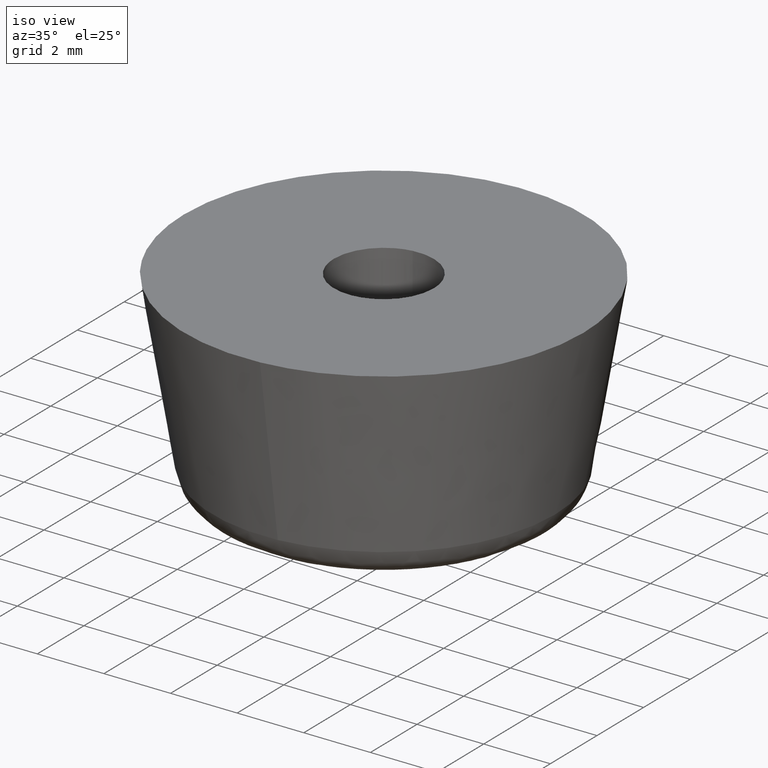
[diagram: clean part render]
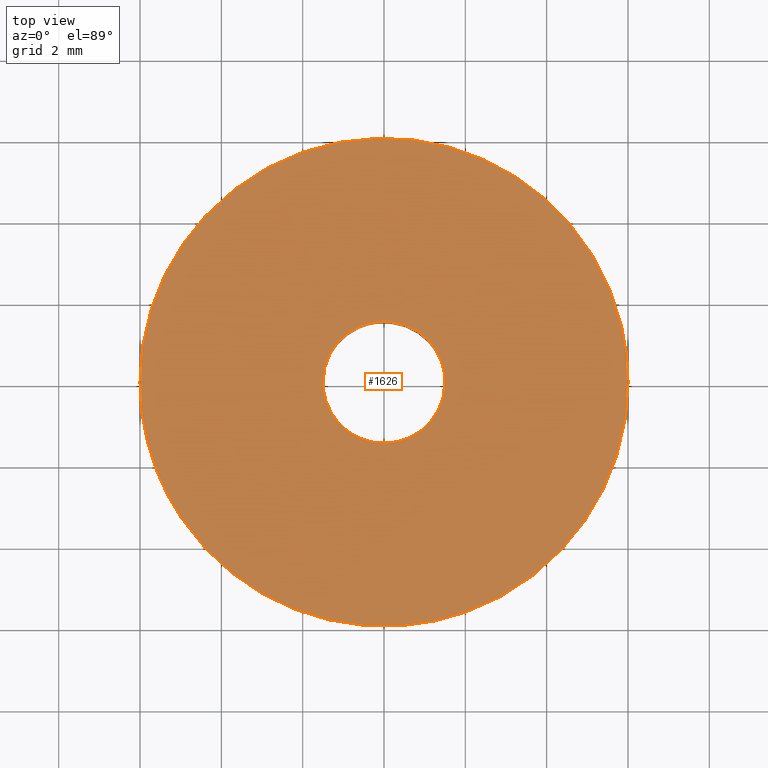
[diagram: tour spotlight — one face highlighted and labeled with its STEP entity id]
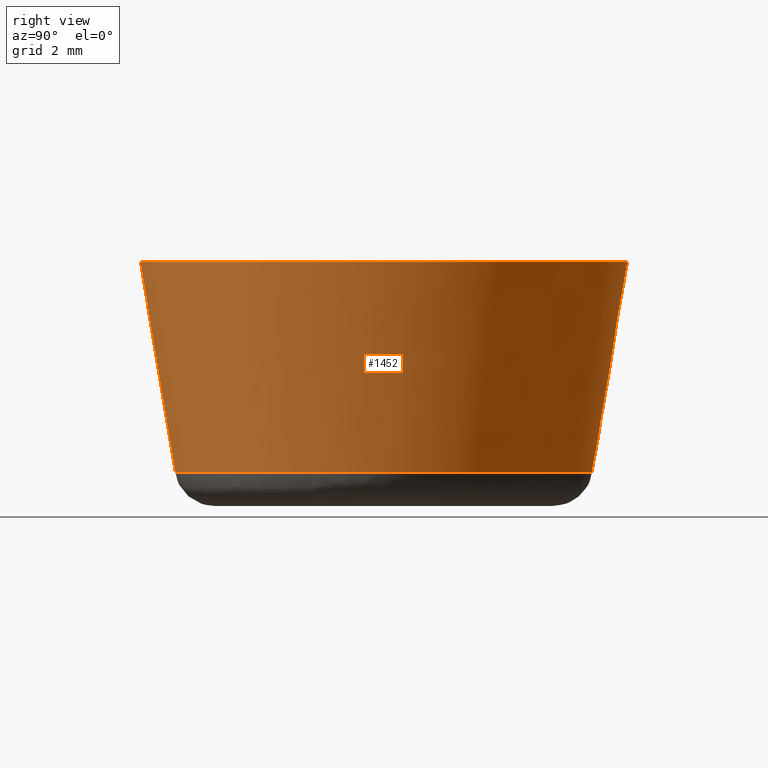
[diagram: tour spotlight — one face highlighted and labeled with its STEP entity id]
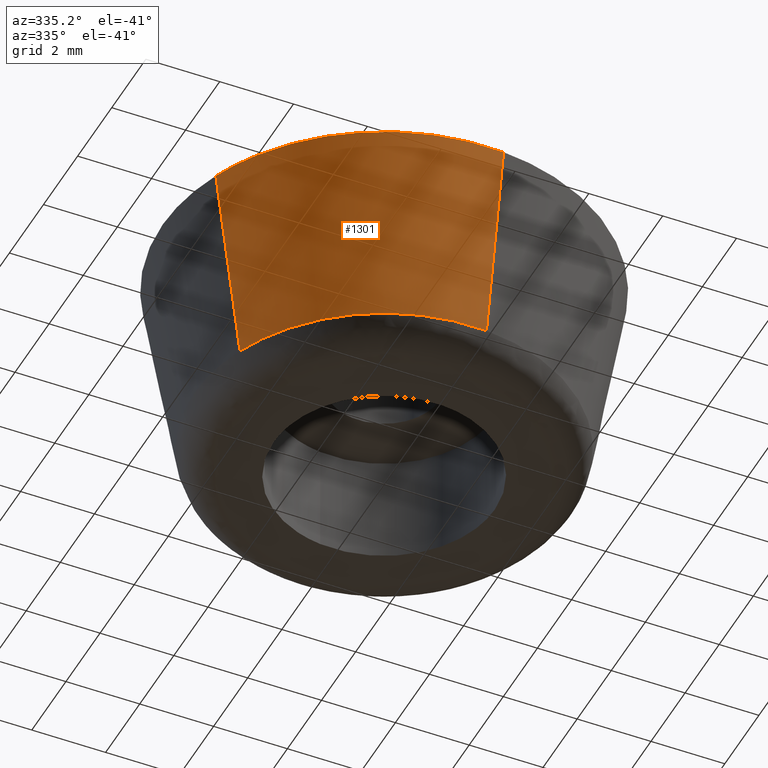
[diagram: tour spotlight — one face highlighted and labeled with its STEP entity id]
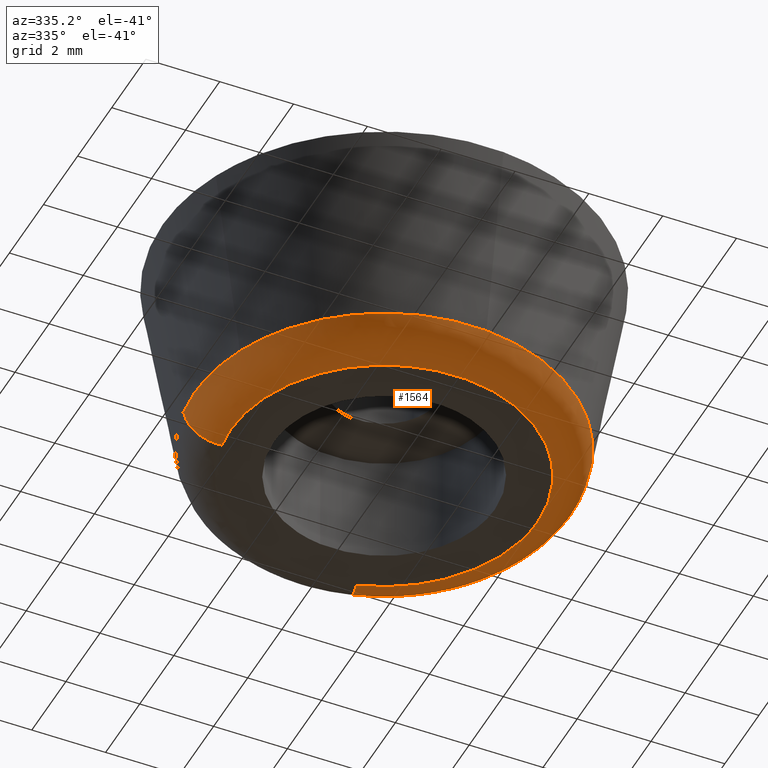
[diagram: tour spotlight — one face highlighted and labeled with its STEP entity id]
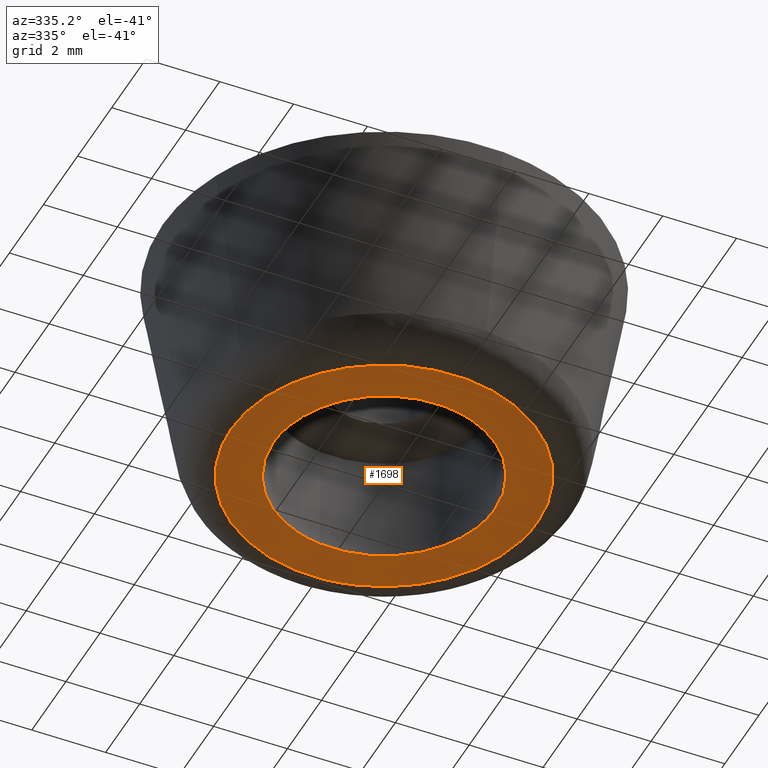
[diagram: tour spotlight — one face highlighted and labeled with its STEP entity id]
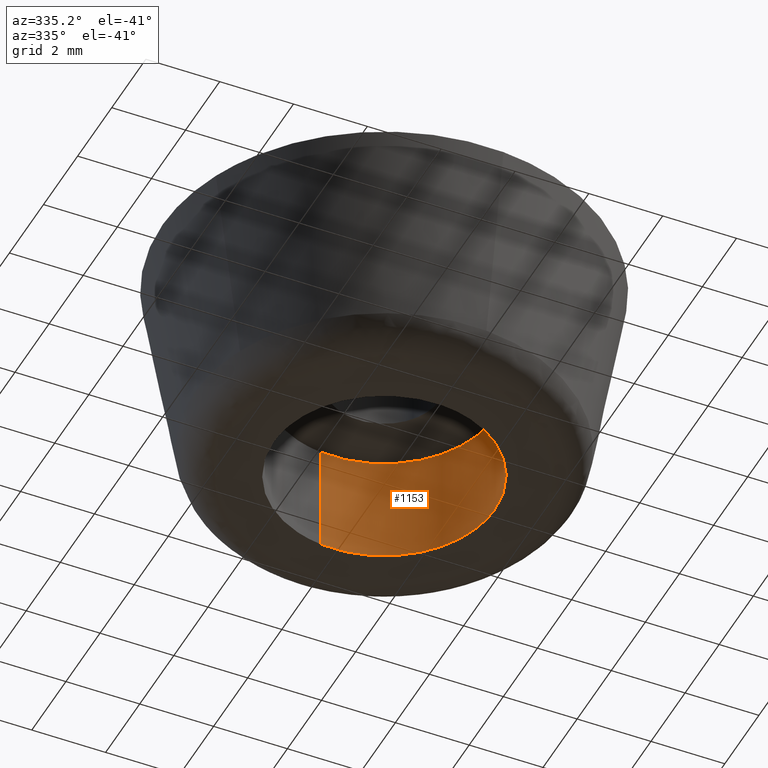
[diagram: tour spotlight — one face highlighted and labeled with its STEP entity id]
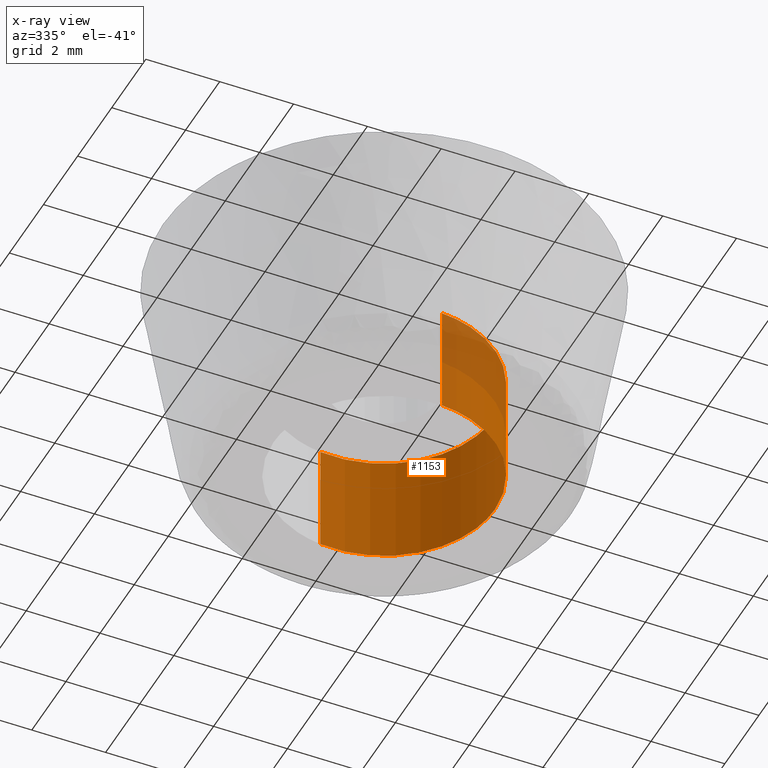
[diagram: x-ray of the same camera — body ghosted, this tour face saturated]
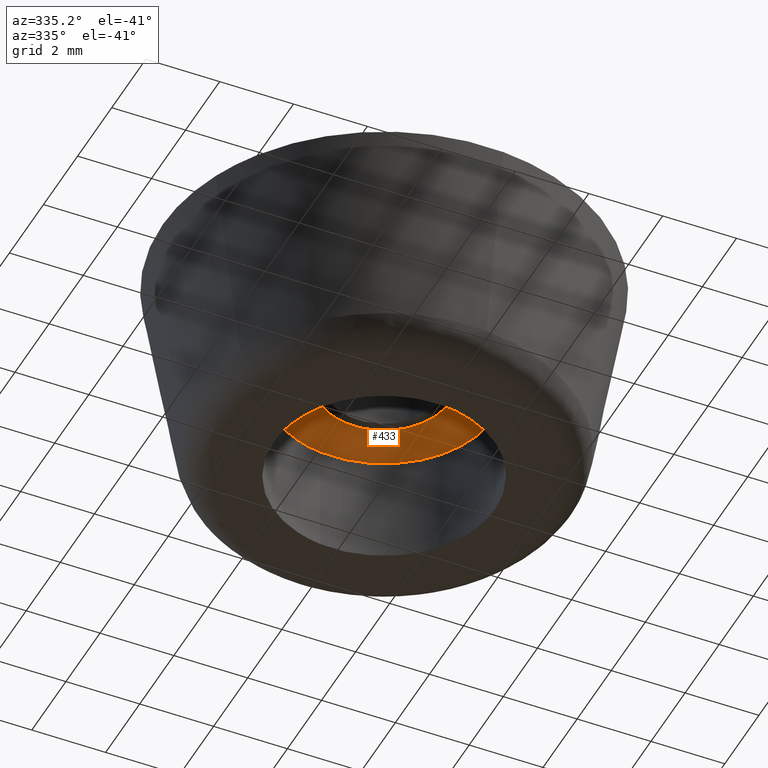
[diagram: tour spotlight — one face highlighted and labeled with its STEP entity id]
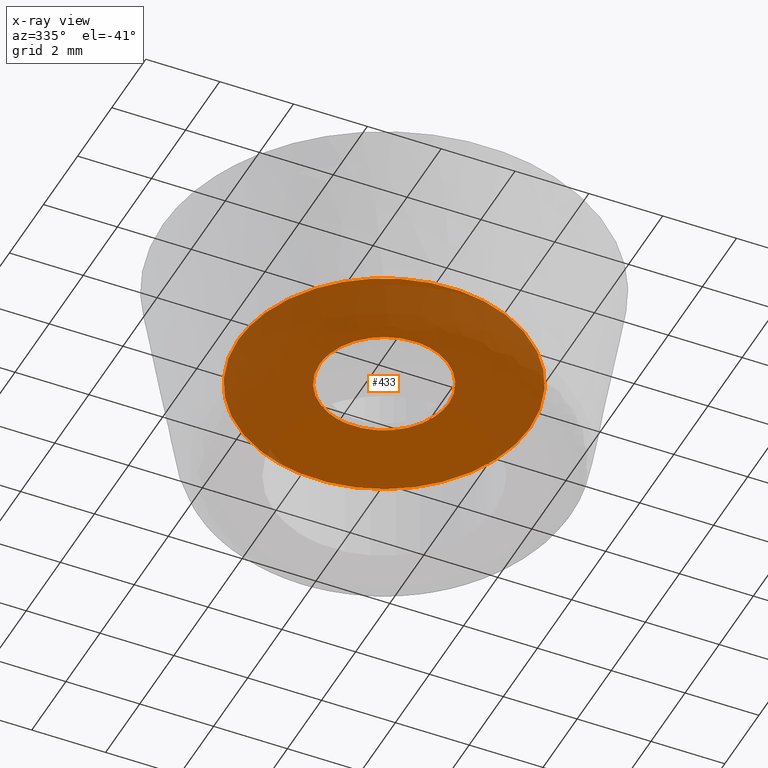
[diagram: x-ray of the same camera — body ghosted, this tour face saturated]
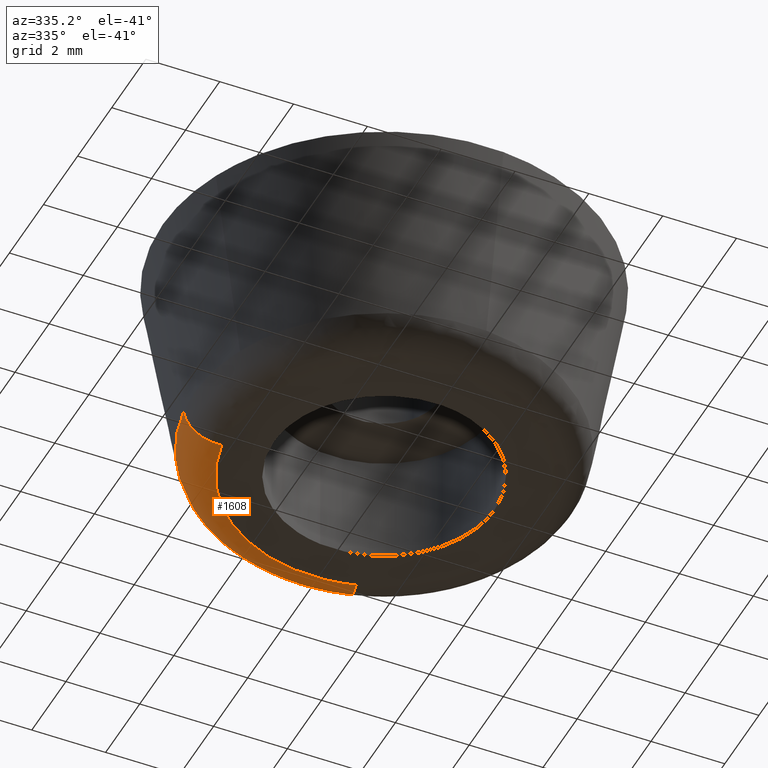
[diagram: tour spotlight — one face highlighted and labeled with its STEP entity id]
A machine part: a face-by-face anatomy tour. The part has 23 B-rep faces; the first image is the clean iso view, then the 8 largest visible faces are spotlighted one at a time (largest first), each with its STEP entity span.

Face 1 — top view, entity #1626. In plain terms, the highlighted face is a freeform B-spline surface patch.
Definition (entity closure, byte-faithful):
#515=CARTESIAN_POINT('',(-0.177051351995047,1.489514289544322,6.0));
#516=VERTEX_POINT('',#515);
#517=CARTESIAN_POINT('',(1.500000000000000,0.0,6.0));
#518=VERTEX_POINT('',#517);
#519=CARTESIAN_POINT('',(-0.177051351995047,1.489514289544321,6.000000000000001));
#520=CARTESIAN_POINT('',(-0.088836179487880,1.500000000000000,6.000000000000001));
#521=CARTESIAN_POINT('',(0.0,1.500000000000000,6.0));
#522=CARTESIAN_POINT('',(1.500000000000000,1.500000000000000,6.0));
#523=CARTESIAN_POINT('',(1.500000000000000,0.0,6.0));
#531=(BOUNDED_CURVE()B_SPLINE_CURVE(2,(#519,#520,#521,#522,#523),.UNSPECIFIED.,.F.,.U.)B_SPLINE_CURVE_WITH_KNOTS((3,2,3),(0.229562473513396,0.250000000000000,0.500000000000000),.UNSPECIFIED.)CURVE()GEOMETRIC_REPRESENTATION_ITEM()RATIONAL_B_SPLINE_CURVE((0.956026754183478,0.976055948331013,1.0,0.707106781186548,1.0))REPRESENTATION_ITEM(''));
#532=EDGE_CURVE('',#516,#518,#531,.T.);
#573=CARTESIAN_POINT('',(0.091572809316450,-1.497202197631934,6.0));
#574=VERTEX_POINT('',#573);
#580=CARTESIAN_POINT('',(1.500000000000000,0.0,6.0));
#581=CARTESIAN_POINT('',(1.500000000000000,-1.411059100331790,6.000000000000002));
#582=CARTESIAN_POINT('',(0.091572809316450,-1.497202197631934,6.0));
#590=(BOUNDED_CURVE()B_SPLINE_CURVE(2,(#580,#581,#582),.UNSPECIFIED.,.F.,.U.)B_SPLINE_CURVE_WITH_KNOTS((3,3),(0.500000000000000,0.739332962238703),.UNSPECIFIED.)CURVE()GEOMETRIC_REPRESENTATION_ITEM()RATIONAL_B_SPLINE_CURVE((1.0,0.719603993286991,0.976072041666204))REPRESENTATION_ITEM(''));
#591=EDGE_CURVE('',#518,#574,#590,.T.);
#614=CARTESIAN_POINT('',(-1.500000000000000,0.0,6.0));
#615=VERTEX_POINT('',#614);
#616=CARTESIAN_POINT('',(-1.500000000000000,0.0,6.0));
#617=CARTESIAN_POINT('',(-1.500000000000000,1.332261788909200,5.999999999999999));
#618=CARTESIAN_POINT('',(-0.177051351995047,1.489514289544321,6.000000000000001));
#626=(BOUNDED_CURVE()B_SPLINE_CURVE(2,(#616,#617,#618),.UNSPECIFIED.,.F.,.U.)B_SPLINE_CURVE_WITH_KNOTS((3,3),(0.0,0.229562473513396),.UNSPECIFIED.)CURVE()GEOMETRIC_REPRESENTATION_ITEM()RATIONAL_B_SPLINE_CURVE((1.0,0.731050832855535,0.956026754183478))REPRESENTATION_ITEM(''));
#627=EDGE_CURVE('',#615,#516,#626,.T.);
#629=CARTESIAN_POINT('',(0.091572809316450,-1.497202197631934,6.000000000000001));
#630=CARTESIAN_POINT('',(0.045829144962088,-1.500000000000000,6.000000000000001));
#631=CARTESIAN_POINT('',(0.0,-1.500000000000000,6.0));
#632=CARTESIAN_POINT('',(-1.500000000000000,-1.500000000000000,6.0));
#633=CARTESIAN_POINT('',(-1.500000000000000,0.0,6.0));
#641=(BOUNDED_CURVE()B_SPLINE_CURVE(2,(#629,#630,#631,#632,#633),.UNSPECIFIED.,.F.,.U.)B_SPLINE_CURVE_WITH_KNOTS((3,2,3),(0.739332962238703,0.750000000000000,1.0),.UNSPECIFIED.)CURVE()GEOMETRIC_REPRESENTATION_ITEM()RATIONAL_B_SPLINE_CURVE((0.976072041666204,0.987502787899557,1.0,0.707106781186548,1.0))REPRESENTATION_ITEM(''));
#642=EDGE_CURVE('',#574,#615,#641,.T.);
#1270=CARTESIAN_POINT('',(0.470751114740077,-5.981504020976525,5.999998482499446));
#1271=VERTEX_POINT('',#1270);
#1277=CARTESIAN_POINT('',(-5.579187041271281,-2.207412204176341,5.999998340320065));
#1278=VERTEX_POINT('',#1277);
#1279=CARTESIAN_POINT('',(0.470751114740077,-5.981504020976525,5.999998482499446));
#1280=CARTESIAN_POINT('',(0.235738901696392,-5.999999751860364,5.999998478718834));
#1281=CARTESIAN_POINT('',(-4.705107E-009,-5.999999756078248,5.999998474730734));
#1282=CARTESIAN_POINT('',(-4.078645190243618,-5.999999829054109,5.999998405730465));
#1283=CARTESIAN_POINT('',(-5.579187041271283,-2.207412204176341,5.999998340320065));
#1291=(BOUNDED_CURVE()B_SPLINE_CURVE(2,(#1279,#1280,#1281,#1282,#1283),.UNSPECIFIED.,.F.,.U.)B_SPLINE_CURVE_WITH_KNOTS((3,2,3),(0.736331399213855,0.750000000000000,0.937532605533869),.UNSPECIFIED.)CURVE()GEOMETRIC_REPRESENTATION_ITEM()RATIONAL_B_SPLINE_CURVE((0.969723561903116,0.983986238076279,1.0,0.780291886130846,0.890203252668208))REPRESENTATION_ITEM(''));
#1292=EDGE_CURVE('',#1271,#1278,#1291,.T.);
#1344=CARTESIAN_POINT('',(-6.0,0.0,6.0));
#1345=VERTEX_POINT('',#1344);
#1346=CARTESIAN_POINT('',(-5.579187041271283,-2.207412204176341,5.999998340320065));
#1347=CARTESIAN_POINT('',(-5.999999871393377,-1.143817169984274,5.999999170160033));
#1348=CARTESIAN_POINT('',(-6.0,0.0,6.0));
#1356=(BOUNDED_CURVE()B_SPLINE_CURVE(2,(#1346,#1347,#1348),.UNSPECIFIED.,.F.,.U.)B_SPLINE_CURVE_WITH_KNOTS((3,3),(0.937532605533869,1.0),.UNSPECIFIED.)CURVE()GEOMETRIC_REPRESENTATION_ITEM()RATIONAL_B_SPLINE_CURVE((0.890203252668208,0.926814895055701,1.0))REPRESENTATION_ITEM(''));
#1357=EDGE_CURVE('',#1278,#1345,#1356,.T.);
#1359=CARTESIAN_POINT('',(6.0,0.0,6.0));
#1360=VERTEX_POINT('',#1359);
#1361=CARTESIAN_POINT('',(-6.0,0.0,6.0));
#1362=CARTESIAN_POINT('',(-6.0,6.0,6.0));
#1363=CARTESIAN_POINT('',(0.0,6.0,6.0));
#1364=CARTESIAN_POINT('',(6.0,6.0,6.0));
#1365=CARTESIAN_POINT('',(6.0,0.0,6.0));
#1373=(BOUNDED_CURVE()B_SPLINE_CURVE(2,(#1361,#1362,#1363,#1364,#1365),.UNSPECIFIED.,.F.,.U.)B_SPLINE_CURVE_WITH_KNOTS((3,2,3),(0.0,0.250000000000000,0.500000000000000),.UNSPECIFIED.)CURVE()GEOMETRIC_REPRESENTATION_ITEM()RATIONAL_B_SPLINE_CURVE((1.0,0.707106781186548,1.0,0.707106781186548,1.0))REPRESENTATION_ITEM(''));
#1374=EDGE_CURVE('',#1345,#1360,#1373,.T.);
#1376=CARTESIAN_POINT('',(6.0,0.0,6.0));
#1377=CARTESIAN_POINT('',(5.999999990078224,-5.546346023279038,5.999999241249724));
#1378=CARTESIAN_POINT('',(0.470751114740077,-5.981504020976525,5.999998482499446));
#1386=(BOUNDED_CURVE()B_SPLINE_CURVE(2,(#1376,#1377,#1378),.UNSPECIFIED.,.F.,.U.)B_SPLINE_CURVE_WITH_KNOTS((3,3),(0.500000000000000,0.736331399213855),.UNSPECIFIED.)CURVE()GEOMETRIC_REPRESENTATION_ITEM()RATIONAL_B_SPLINE_CURVE((1.0,0.723120543110268,0.969723561903116))REPRESENTATION_ITEM(''));
#1387=EDGE_CURVE('',#1360,#1271,#1386,.T.);
#1609=CARTESIAN_POINT('',(6.599399976741671,-6.599274825464486,6.0));
#1610=CARTESIAN_POINT('',(-6.599400298606753,-6.599274825464486,6.0));
#1611=CARTESIAN_POINT('',(6.599399976741671,6.599394344698191,6.0));
#1612=CARTESIAN_POINT('',(-6.599400298606753,6.599394344698191,6.0));
#1613=B_SPLINE_SURFACE_WITH_KNOTS('',1,1,((#1609,#1611),(#1610,#1612)),.UNSPECIFIED.,.F.,.F.,.U.,(2,2),(2,2),(0.0,13.198800275348420),(0.0,13.198669170162679),.UNSPECIFIED.);
#1614=ORIENTED_EDGE('',*,*,#1357,.F.);
#1615=ORIENTED_EDGE('',*,*,#1292,.F.);
#1616=ORIENTED_EDGE('',*,*,#1387,.F.);
#1617=ORIENTED_EDGE('',*,*,#1374,.F.);
#1618=EDGE_LOOP('',(#1614,#1615,#1616,#1617));
#1619=FACE_OUTER_BOUND('',#1618,.T.);
#1620=ORIENTED_EDGE('',*,*,#591,.T.);
#1621=ORIENTED_EDGE('',*,*,#642,.T.);
#1622=ORIENTED_EDGE('',*,*,#627,.T.);
#1623=ORIENTED_EDGE('',*,*,#532,.T.);
#1624=EDGE_LOOP('',(#1620,#1621,#1622,#1623));
#1625=FACE_BOUND('',#1624,.T.);
#1626=ADVANCED_FACE('',(#1619,#1625),#1613,.F.);

Face 2 — right view, entity #1452. In plain terms, the highlighted face is a freeform B-spline surface patch.
Definition (entity closure, byte-faithful):
#1251=CARTESIAN_POINT('',(0.403219261427566,-5.123424298648265,0.835599729853574));
#1252=VERTEX_POINT('',#1251);
#1253=CARTESIAN_POINT('',(-4.778822146771895,-1.890745807766758,0.835598856167588));
#1254=VERTEX_POINT('',#1253);
#1270=CARTESIAN_POINT('',(0.470751114740077,-5.981504020976525,5.999998482499446));
#1271=VERTEX_POINT('',#1270);
#1272=CARTESIAN_POINT('',(0.403219261427566,-5.123424298648265,0.835599729853574));
#1273=CARTESIAN_POINT('',(0.470751114740077,-5.981504020976525,5.999998482499446));
#1274=QUASI_UNIFORM_CURVE('',1,(#1272,#1273),.UNSPECIFIED.,.F.,.U.);
#1275=EDGE_CURVE('',#1252,#1271,#1274,.T.);
#1277=CARTESIAN_POINT('',(-5.579187041271281,-2.207412204176341,5.999998340320065));
#1278=VERTEX_POINT('',#1277);
#1294=CARTESIAN_POINT('',(-4.778822146771895,-1.890745807766758,0.835598856167588));
#1295=CARTESIAN_POINT('',(-5.579187041271281,-2.207412204176341,5.999998340320065));
#1296=QUASI_UNIFORM_CURVE('',1,(#1294,#1295),.UNSPECIFIED.,.F.,.U.);
#1297=EDGE_CURVE('',#1254,#1278,#1296,.T.);
#1302=CARTESIAN_POINT('',(0.401533927125253,-5.101972286573673,0.706491041670145));
#1303=CARTESIAN_POINT('',(5.503506213698925,-4.700438359448421,0.706491041670145));
#1304=CARTESIAN_POINT('',(5.101972286573673,0.401533927125253,0.706491041670145));
#1305=CARTESIAN_POINT('',(4.700438359448421,5.503506213698925,0.706491041670145));
#1306=CARTESIAN_POINT('',(-0.401533927125253,5.101972286573673,0.706491041670145));
#1307=CARTESIAN_POINT('',(-5.503506213698925,4.700438359448421,0.706491041670145));
#1308=CARTESIAN_POINT('',(-5.101972286573673,-0.401533927125253,0.706491041670145));
#1309=CARTESIAN_POINT('',(-5.041653416417267,-1.167957840787284,0.706491041670145));
#1310=CARTESIAN_POINT('',(-4.758812330206519,-1.882831886673057,0.706491041670145));
#1311=CARTESIAN_POINT('',(0.472485090548119,-6.003492295294394,6.132337723958248));
#1312=CARTESIAN_POINT('',(6.475977385842514,-5.531007204746276,6.132337723958248));
#1313=CARTESIAN_POINT('',(6.003492295294394,0.472485090548119,6.132337723958248));
#1314=CARTESIAN_POINT('',(5.531007204746276,6.475977385842514,6.132337723958248));
#1315=CARTESIAN_POINT('',(-0.472485090548119,6.003492295294394,6.132337723958248));
#1316=CARTESIAN_POINT('',(-6.475977385842514,5.531007204746276,6.132337723958248));
#1317=CARTESIAN_POINT('',(-6.003492295294394,-0.472485090548119,6.132337723958248));
#1318=CARTESIAN_POINT('',(-5.932515062980174,-1.374336335939618,6.132337723958247));
#1319=CARTESIAN_POINT('',(-5.599695873364531,-2.215528836705506,6.132337723958245));
#1327=(BOUNDED_SURFACE()B_SPLINE_SURFACE(2,1,((#1302,#1311),(#1303,#1312),(#1304,#1313),(#1305,#1314),(#1306,#1315),(#1307,#1316),(#1308,#1317),(#1309,#1318),(#1310,#1319)),.UNSPECIFIED.,.F.,.F.,.U.)B_SPLINE_SURFACE_WITH_KNOTS((3,2,2,2,3),(2,2),(0.0,9.977669546586540,19.955339093173080,29.933008639759620,31.928542549076930),(0.0,5.500689467095165),.UNSPECIFIED.)GEOMETRIC_REPRESENTATION_ITEM()RATIONAL_B_SPLINE_SURFACE(((1.0,1.0),(0.707106781186548,0.707106781186548),(1.0,1.0),(0.707106781186548,0.707106781186548),(1.0,1.0),(0.707106781186548,0.707106781186548),(1.0,1.0),(0.941421356237310,0.941421356237310),(0.906274169979695,0.906274169979695)))REPRESENTATION_ITEM('')SURFACE());
#1328=CARTESIAN_POINT('',(-5.139266924429029,0.0,0.835601016275973));
#1329=VERTEX_POINT('',#1328);
#1330=CARTESIAN_POINT('',(-4.778822146771896,-1.890745807766758,0.835598856167588));
#1331=CARTESIAN_POINT('',(-5.139266757044666,-0.979729766337922,0.835599936221780));
#1332=CARTESIAN_POINT('',(-5.139266924429029,0.0,0.835601016275973));
#1340=(BOUNDED_CURVE()B_SPLINE_CURVE(2,(#1330,#1331,#1332),.UNSPECIFIED.,.F.,.U.)B_SPLINE_CURVE_WITH_KNOTS((3,3),(0.937532635232451,1.0),.UNSPECIFIED.)CURVE()GEOMETRIC_REPRESENTATION_ITEM()RATIONAL_B_SPLINE_CURVE((0.890203287480421,0.926814929849754,1.0))REPRESENTATION_ITEM(''));
#1341=EDGE_CURVE('',#1254,#1329,#1340,.T.);
#1342=ORIENTED_EDGE('',*,*,#1341,.F.);
#1343=ORIENTED_EDGE('',*,*,#1297,.T.);
#1344=CARTESIAN_POINT('',(-6.0,0.0,6.0));
#1345=VERTEX_POINT('',#1344);
#1346=CARTESIAN_POINT('',(-5.579187041271283,-2.207412204176341,5.999998340320065));
#1347=CARTESIAN_POINT('',(-5.999999871393377,-1.143817169984274,5.999999170160033));
#1348=CARTESIAN_POINT('',(-6.0,0.0,6.0));
#1356=(BOUNDED_CURVE()B_SPLINE_CURVE(2,(#1346,#1347,#1348),.UNSPECIFIED.,.F.,.U.)B_SPLINE_CURVE_WITH_KNOTS((3,3),(0.937532605533869,1.0),.UNSPECIFIED.)CURVE()GEOMETRIC_REPRESENTATION_ITEM()RATIONAL_B_SPLINE_CURVE((0.890203252668208,0.926814895055701,1.0))REPRESENTATION_ITEM(''));
#1357=EDGE_CURVE('',#1278,#1345,#1356,.T.);
#1358=ORIENTED_EDGE('',*,*,#1357,.T.);
#1359=CARTESIAN_POINT('',(6.0,0.0,6.0));
#1360=VERTEX_POINT('',#1359);
#1361=CARTESIAN_POINT('',(-6.0,0.0,6.0));
#1362=CARTESIAN_POINT('',(-6.0,6.0,6.0));
#1363=CARTESIAN_POINT('',(0.0,6.0,6.0));
#1364=CARTESIAN_POINT('',(6.0,6.0,6.0));
#1365=CARTESIAN_POINT('',(6.0,0.0,6.0));
#1373=(BOUNDED_CURVE()B_SPLINE_CURVE(2,(#1361,#1362,#1363,#1364,#1365),.UNSPECIFIED.,.F.,.U.)B_SPLINE_CURVE_WITH_KNOTS((3,2,3),(0.0,0.250000000000000,0.500000000000000),.UNSPECIFIED.)CURVE()GEOMETRIC_REPRESENTATION_ITEM()RATIONAL_B_SPLINE_CURVE((1.0,0.707106781186548,1.0,0.707106781186548,1.0))REPRESENTATION_ITEM(''));
#1374=EDGE_CURVE('',#1345,#1360,#1373,.T.);
#1375=ORIENTED_EDGE('',*,*,#1374,.T.);
#1376=CARTESIAN_POINT('',(6.0,0.0,6.0));
#1377=CARTESIAN_POINT('',(5.999999990078224,-5.546346023279038,5.999999241249724));
#1378=CARTESIAN_POINT('',(0.470751114740077,-5.981504020976525,5.999998482499446));
#1386=(BOUNDED_CURVE()B_SPLINE_CURVE(2,(#1376,#1377,#1378),.UNSPECIFIED.,.F.,.U.)B_SPLINE_CURVE_WITH_KNOTS((3,3),(0.500000000000000,0.736331399213855),.UNSPECIFIED.)CURVE()GEOMETRIC_REPRESENTATION_ITEM()RATIONAL_B_SPLINE_CURVE((1.0,0.723120543110268,0.969723561903116))REPRESENTATION_ITEM(''));
#1387=EDGE_CURVE('',#1360,#1271,#1386,.T.);
#1388=ORIENTED_EDGE('',*,*,#1387,.T.);
#1389=ORIENTED_EDGE('',*,*,#1275,.F.);
#1390=CARTESIAN_POINT('',(5.139266924429029,0.0,0.835601016275973));
#1391=VERTEX_POINT('',#1390);
#1392=CARTESIAN_POINT('',(5.139266924429029,0.0,0.835601016275973));
#1393=CARTESIAN_POINT('',(5.139266916018098,-4.750692122839118,0.835600373064774));
#1394=CARTESIAN_POINT('',(0.403219261427566,-5.123424298648265,0.835599729853574));
#1402=(BOUNDED_CURVE()B_SPLINE_CURVE(2,(#1392,#1393,#1394),.UNSPECIFIED.,.F.,.U.)B_SPLINE_CURVE_WITH_KNOTS((3,3),(0.500000000000000,0.736331399582497),.UNSPECIFIED.)CURVE()GEOMETRIC_REPRESENTATION_ITEM()RATIONAL_B_SPLINE_CURVE((1.0,0.723120542678376,0.969723562672446))REPRESENTATION_ITEM(''));
#1403=EDGE_CURVE('',#1391,#1252,#1402,.T.);
#1404=ORIENTED_EDGE('',*,*,#1403,.F.);
#1405=CARTESIAN_POINT('',(1.353553079199282,4.957817925489613,0.835601016267676));
#1406=VERTEX_POINT('',#1405);
#1407=CARTESIAN_POINT('',(1.353553079199282,4.957817925489613,0.835601016267676));
#1408=CARTESIAN_POINT('',(5.139266924429030,3.924265522157510,0.835601016275973));
#1409=CARTESIAN_POINT('',(5.139266924429029,0.0,0.835601016275973));
#1417=(BOUNDED_CURVE()B_SPLINE_CURVE(2,(#1407,#1408,#1409),.UNSPECIFIED.,.F.,.U.)B_SPLINE_CURVE_WITH_KNOTS((3,3),(0.294901926750584,0.500000000000000),.UNSPECIFIED.)CURVE()GEOMETRIC_REPRESENTATION_ITEM()RATIONAL_B_SPLINE_CURVE((0.913685083902437,0.759712660614165,1.0))REPRESENTATION_ITEM(''));
#1418=EDGE_CURVE('',#1406,#1391,#1417,.T.);
#1419=ORIENTED_EDGE('',*,*,#1418,.F.);
#1420=CARTESIAN_POINT('',(-5.080945211508535,0.772049401371074,0.835601016263556));
#1421=VERTEX_POINT('',#1420);
#1422=CARTESIAN_POINT('',(-5.080945211508534,0.772049401371074,0.835601016263556));
#1423=CARTESIAN_POINT('',(-4.417346701001588,5.139266924429030,0.835601016275973));
#1424=CARTESIAN_POINT('',(0.0,5.139266924429029,0.835601016275973));
#1425=CARTESIAN_POINT('',(0.688938507875103,5.139266924429029,0.835601016275973));
#1426=CARTESIAN_POINT('',(1.353553079199282,4.957817925489613,0.835601016267676));
#1434=(BOUNDED_CURVE()B_SPLINE_CURVE(2,(#1422,#1423,#1424,#1425,#1426),.UNSPECIFIED.,.F.,.U.)B_SPLINE_CURVE_WITH_KNOTS((3,2,3),(0.025897584623479,0.250000000000000,0.294901926750584),.UNSPECIFIED.)CURVE()GEOMETRIC_REPRESENTATION_ITEM()RATIONAL_B_SPLINE_CURVE((0.945604234434538,0.737447688866006,1.0,0.947394120572383,0.913685083902437))REPRESENTATION_ITEM(''));
#1435=EDGE_CURVE('',#1421,#1406,#1434,.T.);
#1436=ORIENTED_EDGE('',*,*,#1435,.F.);
#1437=CARTESIAN_POINT('',(-5.139266924429029,0.0,0.835601016275973));
#1438=CARTESIAN_POINT('',(-5.139266924429029,0.388227553373529,0.835601016275973));
#1439=CARTESIAN_POINT('',(-5.080945211508535,0.772049401371074,0.835601016263556));
#1447=(BOUNDED_CURVE()B_SPLINE_CURVE(2,(#1437,#1438,#1439),.UNSPECIFIED.,.F.,.U.)B_SPLINE_CURVE_WITH_KNOTS((3,3),(0.0,0.025897584623479),.UNSPECIFIED.)CURVE()GEOMETRIC_REPRESENTATION_ITEM()RATIONAL_B_SPLINE_CURVE((1.0,0.969659092320541,0.945604234434539))REPRESENTATION_ITEM(''));
#1448=EDGE_CURVE('',#1329,#1421,#1447,.T.);
#1449=ORIENTED_EDGE('',*,*,#1448,.F.);
#1450=EDGE_LOOP('',(#1342,#1343,#1358,#1375,#1388,#1389,#1404,#1419,#1436,#1449));
#1451=FACE_OUTER_BOUND('',#1450,.T.);
#1452=ADVANCED_FACE('',(#1451),#1327,.T.);

Face 3 — auxiliary view, entity #1301. In plain terms, the highlighted face is a freeform B-spline surface patch.
Definition (entity closure, byte-faithful):
#1237=CARTESIAN_POINT('',(-4.758812330206519,-1.882831886673057,0.706491041670145));
#1238=CARTESIAN_POINT('',(-3.367783428237757,-5.398623996004401,0.706491041670145));
#1239=CARTESIAN_POINT('',(0.401533927125253,-5.101972286573673,0.706491041670145));
#1240=CARTESIAN_POINT('',(-5.599695873364531,-2.215528836705506,6.132337723958245));
#1241=CARTESIAN_POINT('',(-3.962871753900412,-6.352562449328749,6.132337723958247));
#1242=CARTESIAN_POINT('',(0.472485090548119,-6.003492295294394,6.132337723958248));
#1250=(BOUNDED_SURFACE()B_SPLINE_SURFACE(2,1,((#1237,#1240),(#1238,#1241),(#1239,#1242)),.UNSPECIFIED.,.F.,.F.,.U.)B_SPLINE_SURFACE_WITH_KNOTS((3,3),(2,2),(0.0,7.927728311642844),(0.0,5.500689467095164),.UNSPECIFIED.)GEOMETRIC_REPRESENTATION_ITEM()RATIONAL_B_SPLINE_SURFACE(((0.906274169979695,0.906274169979695),(0.765685424949238,0.765685424949238),(1.0,1.0)))REPRESENTATION_ITEM('')SURFACE());
#1251=CARTESIAN_POINT('',(0.403219261427566,-5.123424298648265,0.835599729853574));
#1252=VERTEX_POINT('',#1251);
#1253=CARTESIAN_POINT('',(-4.778822146771895,-1.890745807766758,0.835598856167588));
#1254=VERTEX_POINT('',#1253);
#1255=CARTESIAN_POINT('',(0.403219261427566,-5.123424298648265,0.835599729853574));
#1256=CARTESIAN_POINT('',(0.201920854394227,-5.139266712846982,0.835599706621885));
#1257=CARTESIAN_POINT('',(2.389120E-009,-5.139266715127206,0.835599682115188));
#1258=CARTESIAN_POINT('',(-3.493541700939098,-5.139266754578591,0.835599258111597));
#1259=CARTESIAN_POINT('',(-4.778822146771896,-1.890745807766758,0.835598856167588));
#1267=(BOUNDED_CURVE()B_SPLINE_CURVE(2,(#1255,#1256,#1257,#1258,#1259),.UNSPECIFIED.,.F.,.U.)B_SPLINE_CURVE_WITH_KNOTS((3,2,3),(0.736331399582497,0.750000000000000,0.937532635232451),.UNSPECIFIED.)CURVE()GEOMETRIC_REPRESENTATION_ITEM()RATIONAL_B_SPLINE_CURVE((0.969723562672446,0.983986238508171,1.0,0.780291851336793,0.890203287480421))REPRESENTATION_ITEM(''));
#1268=EDGE_CURVE('',#1252,#1254,#1267,.T.);
#1269=ORIENTED_EDGE('',*,*,#1268,.F.);
#1270=CARTESIAN_POINT('',(0.470751114740077,-5.981504020976525,5.999998482499446));
#1271=VERTEX_POINT('',#1270);
#1272=CARTESIAN_POINT('',(0.403219261427566,-5.123424298648265,0.835599729853574));
#1273=CARTESIAN_POINT('',(0.470751114740077,-5.981504020976525,5.999998482499446));
#1274=QUASI_UNIFORM_CURVE('',1,(#1272,#1273),.UNSPECIFIED.,.F.,.U.);
#1275=EDGE_CURVE('',#1252,#1271,#1274,.T.);
#1276=ORIENTED_EDGE('',*,*,#1275,.T.);
#1277=CARTESIAN_POINT('',(-5.579187041271281,-2.207412204176341,5.999998340320065));
#1278=VERTEX_POINT('',#1277);
#1279=CARTESIAN_POINT('',(0.470751114740077,-5.981504020976525,5.999998482499446));
#1280=CARTESIAN_POINT('',(0.235738901696392,-5.999999751860364,5.999998478718834));
#1281=CARTESIAN_POINT('',(-4.705107E-009,-5.999999756078248,5.999998474730734));
#1282=CARTESIAN_POINT('',(-4.078645190243618,-5.999999829054109,5.999998405730465));
#1283=CARTESIAN_POINT('',(-5.579187041271283,-2.207412204176341,5.999998340320065));
#1291=(BOUNDED_CURVE()B_SPLINE_CURVE(2,(#1279,#1280,#1281,#1282,#1283),.UNSPECIFIED.,.F.,.U.)B_SPLINE_CURVE_WITH_KNOTS((3,2,3),(0.736331399213855,0.750000000000000,0.937532605533869),.UNSPECIFIED.)CURVE()GEOMETRIC_REPRESENTATION_ITEM()RATIONAL_B_SPLINE_CURVE((0.969723561903116,0.983986238076279,1.0,0.780291886130846,0.890203252668208))REPRESENTATION_ITEM(''));
#1292=EDGE_CURVE('',#1271,#1278,#1291,.T.);
#1293=ORIENTED_EDGE('',*,*,#1292,.T.);
#1294=CARTESIAN_POINT('',(-4.778822146771895,-1.890745807766758,0.835598856167588));
#1295=CARTESIAN_POINT('',(-5.579187041271281,-2.207412204176341,5.999998340320065));
#1296=QUASI_UNIFORM_CURVE('',1,(#1294,#1295),.UNSPECIFIED.,.F.,.U.);
#1297=EDGE_CURVE('',#1254,#1278,#1296,.T.);
#1298=ORIENTED_EDGE('',*,*,#1297,.F.);
#1299=EDGE_LOOP('',(#1269,#1276,#1293,#1298));
#1300=FACE_OUTER_BOUND('',#1299,.T.);
#1301=ADVANCED_FACE('',(#1300),#1250,.T.);

Face 4 — auxiliary view, entity #1564. In plain terms, the highlighted face is a freeform B-spline surface patch.
Definition (entity closure, byte-faithful):
#1251=CARTESIAN_POINT('',(0.403219261427566,-5.123424298648265,0.835599729853574));
#1252=VERTEX_POINT('',#1251);
#1253=CARTESIAN_POINT('',(-4.778822146771895,-1.890745807766758,0.835598856167588));
#1254=VERTEX_POINT('',#1253);
#1255=CARTESIAN_POINT('',(0.403219261427566,-5.123424298648265,0.835599729853574));
#1256=CARTESIAN_POINT('',(0.201920854394227,-5.139266712846982,0.835599706621885));
#1257=CARTESIAN_POINT('',(2.389120E-009,-5.139266715127206,0.835599682115188));
#1258=CARTESIAN_POINT('',(-3.493541700939098,-5.139266754578591,0.835599258111597));
#1259=CARTESIAN_POINT('',(-4.778822146771896,-1.890745807766758,0.835598856167588));
#1267=(BOUNDED_CURVE()B_SPLINE_CURVE(2,(#1255,#1256,#1257,#1258,#1259),.UNSPECIFIED.,.F.,.U.)B_SPLINE_CURVE_WITH_KNOTS((3,2,3),(0.736331399582497,0.750000000000000,0.937532635232451),.UNSPECIFIED.)CURVE()GEOMETRIC_REPRESENTATION_ITEM()RATIONAL_B_SPLINE_CURVE((0.969723562672446,0.983986238508171,1.0,0.780291851336793,0.890203287480421))REPRESENTATION_ITEM(''));
#1268=EDGE_CURVE('',#1252,#1254,#1267,.T.);
#1328=CARTESIAN_POINT('',(-5.139266924429029,0.0,0.835601016275973));
#1329=VERTEX_POINT('',#1328);
#1330=CARTESIAN_POINT('',(-4.778822146771896,-1.890745807766758,0.835598856167588));
#1331=CARTESIAN_POINT('',(-5.139266757044666,-0.979729766337922,0.835599936221780));
#1332=CARTESIAN_POINT('',(-5.139266924429029,0.0,0.835601016275973));
#1340=(BOUNDED_CURVE()B_SPLINE_CURVE(2,(#1330,#1331,#1332),.UNSPECIFIED.,.F.,.U.)B_SPLINE_CURVE_WITH_KNOTS((3,3),(0.937532635232451,1.0),.UNSPECIFIED.)CURVE()GEOMETRIC_REPRESENTATION_ITEM()RATIONAL_B_SPLINE_CURVE((0.890203287480421,0.926814929849754,1.0))REPRESENTATION_ITEM(''));
#1341=EDGE_CURVE('',#1254,#1329,#1340,.T.);
#1390=CARTESIAN_POINT('',(5.139266924429029,0.0,0.835601016275973));
#1391=VERTEX_POINT('',#1390);
#1392=CARTESIAN_POINT('',(5.139266924429029,0.0,0.835601016275973));
#1393=CARTESIAN_POINT('',(5.139266916018098,-4.750692122839118,0.835600373064774));
#1394=CARTESIAN_POINT('',(0.403219261427566,-5.123424298648265,0.835599729853574));
#1402=(BOUNDED_CURVE()B_SPLINE_CURVE(2,(#1392,#1393,#1394),.UNSPECIFIED.,.F.,.U.)B_SPLINE_CURVE_WITH_KNOTS((3,3),(0.500000000000000,0.736331399582497),.UNSPECIFIED.)CURVE()GEOMETRIC_REPRESENTATION_ITEM()RATIONAL_B_SPLINE_CURVE((1.0,0.723120542678376,0.969723562672446))REPRESENTATION_ITEM(''));
#1403=EDGE_CURVE('',#1391,#1252,#1402,.T.);
#1405=CARTESIAN_POINT('',(1.353553079199282,4.957817925489613,0.835601016267676));
#1406=VERTEX_POINT('',#1405);
#1407=CARTESIAN_POINT('',(1.353553079199282,4.957817925489613,0.835601016267676));
#1408=CARTESIAN_POINT('',(5.139266924429030,3.924265522157510,0.835601016275973));
#1409=CARTESIAN_POINT('',(5.139266924429029,0.0,0.835601016275973));
#1417=(BOUNDED_CURVE()B_SPLINE_CURVE(2,(#1407,#1408,#1409),.UNSPECIFIED.,.F.,.U.)B_SPLINE_CURVE_WITH_KNOTS((3,3),(0.294901926750584,0.500000000000000),.UNSPECIFIED.)CURVE()GEOMETRIC_REPRESENTATION_ITEM()RATIONAL_B_SPLINE_CURVE((0.913685083902437,0.759712660614165,1.0))REPRESENTATION_ITEM(''));
#1418=EDGE_CURVE('',#1406,#1391,#1417,.T.);
#1420=CARTESIAN_POINT('',(-5.080945211508535,0.772049401371074,0.835601016263556));
#1421=VERTEX_POINT('',#1420);
#1437=CARTESIAN_POINT('',(-5.139266924429029,0.0,0.835601016275973));
#1438=CARTESIAN_POINT('',(-5.139266924429029,0.388227553373529,0.835601016275973));
#1439=CARTESIAN_POINT('',(-5.080945211508535,0.772049401371074,0.835601016263556));
#1447=(BOUNDED_CURVE()B_SPLINE_CURVE(2,(#1437,#1438,#1439),.UNSPECIFIED.,.F.,.U.)B_SPLINE_CURVE_WITH_KNOTS((3,3),(0.0,0.025897584623479),.UNSPECIFIED.)CURVE()GEOMETRIC_REPRESENTATION_ITEM()RATIONAL_B_SPLINE_CURVE((1.0,0.969659092320541,0.945604234434539))REPRESENTATION_ITEM(''));
#1448=EDGE_CURVE('',#1329,#1421,#1447,.T.);
#1453=CARTESIAN_POINT('',(1.355785565361039,4.965995114905851,0.898842139884797));
#1454=CARTESIAN_POINT('',(5.777963001531841,3.758679320850880,0.898842139884797));
#1455=CARTESIAN_POINT('',(5.089325481223023,-0.773322782985314,0.898842139884796));
#1456=CARTESIAN_POINT('',(4.316002698237710,-5.862648264208337,0.898842139884797));
#1457=CARTESIAN_POINT('',(-0.773322782985315,-5.089325481223023,0.898842139884796));
#1458=CARTESIAN_POINT('',(-5.862648264208337,-4.316002698237710,0.898842139884797));
#1459=CARTESIAN_POINT('',(-5.089325481223023,0.773322782985314,0.898842139884796));
#1460=CARTESIAN_POINT('',(1.330125417634791,4.872006676385801,-0.059348460473282));
#1461=CARTESIAN_POINT('',(5.668606929329806,3.687541030923046,-0.059348460473282));
#1462=CARTESIAN_POINT('',(4.993002842148192,-0.758686562215260,-0.059348460473282));
#1463=CARTESIAN_POINT('',(4.234316279932931,-5.751689404363454,-0.059348460473282));
#1464=CARTESIAN_POINT('',(-0.758686562215261,-4.993002842148192,-0.059348460473282));
#1465=CARTESIAN_POINT('',(-5.751689404363454,-4.234316279932931,-0.059348460473282));
#1466=CARTESIAN_POINT('',(-4.993002842148192,0.758686562215261,-0.059348460473282));
#1467=CARTESIAN_POINT('',(1.076976690908102,3.944769086321470,0.002032889297588));
#1468=CARTESIAN_POINT('',(4.589760823956053,2.985730281083739,0.002032889297588));
#1469=CARTESIAN_POINT('',(4.042737329381635,-0.614293759353887,0.002032889297588));
#1470=CARTESIAN_POINT('',(3.428443570027747,-4.657031088735523,0.002032889297588));
#1471=CARTESIAN_POINT('',(-0.614293759353888,-4.042737329381635,0.002032889297588));
#1472=CARTESIAN_POINT('',(-4.657031088735523,-3.428443570027747,0.002032889297588));
#1473=CARTESIAN_POINT('',(-4.042737329381635,0.614293759353888,0.002032889297588));
#1481=(BOUNDED_SURFACE()B_SPLINE_SURFACE(2,2,((#1453,#1460,#1467),(#1454,#1461,#1468),(#1455,#1462,#1469),(#1456,#1463,#1470),(#1457,#1464,#1471),(#1458,#1465,#1472),(#1459,#1466,#1473)),.UNSPECIFIED.,.F.,.F.,.U.)B_SPLINE_SURFACE_WITH_KNOTS((3,2,2,3),(3,3),(0.0,7.846735665875552,16.375796172262021,24.904856678648489),(0.0,1.613022704715819),.UNSPECIFIED.)GEOMETRIC_REPRESENTATION_ITEM()RATIONAL_B_SPLINE_SURFACE(((0.878064143825965,0.632656475202243,0.878681398686377),(0.670361311439862,0.483003921056997,0.670832556941261),(0.917626588089985,0.661161723610861,0.918271654256875),(0.648859983035503,0.467511938226226,0.649316113696425),(0.917626588089985,0.661161723610861,0.918271654256875),(0.648859983035503,0.467511938226226,0.649316113696425),(0.917626588089985,0.661161723610861,0.918271654256875)))REPRESENTATION_ITEM('')SURFACE());
#1482=CARTESIAN_POINT('',(1.093761837947869,4.006250016816409,1.618685E-016));
#1483=VERTEX_POINT('',#1482);
#1484=CARTESIAN_POINT('',(4.152873000000000,0.0,0.0));
#1485=VERTEX_POINT('',#1484);
#1486=CARTESIAN_POINT('',(1.093761837947869,4.006250016816409,1.618685E-016));
#1487=CARTESIAN_POINT('',(4.152872999999999,3.171070226804054,0.0));
#1488=CARTESIAN_POINT('',(4.152873000000000,0.0,0.0));
#1496=(BOUNDED_CURVE()B_SPLINE_CURVE(2,(#1486,#1487,#1488),.UNSPECIFIED.,.F.,.U.)B_SPLINE_CURVE_WITH_KNOTS((3,3),(0.294901926751952,0.500000000000000),.UNSPECIFIED.)CURVE()GEOMETRIC_REPRESENTATION_ITEM()RATIONAL_B_SPLINE_CURVE((0.913685083900383,0.759712660615767,1.0))REPRESENTATION_ITEM(''));
#1497=EDGE_CURVE('',#1483,#1485,#1496,.T.);
#1498=ORIENTED_EDGE('',*,*,#1497,.F.);
#1499=CARTESIAN_POINT('',(1.353553079199283,4.957817925489613,0.835601016267676));
#1500=CARTESIAN_POINT('',(1.316873713586720,4.823468102699648,2.577554E-010));
#1501=CARTESIAN_POINT('',(1.093761837947869,4.006250016816409,1.618685E-016));
#1509=(BOUNDED_CURVE()B_SPLINE_CURVE(2,(#1499,#1500,#1501),.UNSPECIFIED.,.F.,.U.)B_SPLINE_CURVE_WITH_KNOTS((3,3),(-1.709168039685274,-0.288869904762326),.UNSPECIFIED.)CURVE()GEOMETRIC_REPRESENTATION_ITEM()RATIONAL_B_SPLINE_CURVE((0.856788139883436,0.653960524906272,0.857349303142179))REPRESENTATION_ITEM(''));
#1510=EDGE_CURVE('',#1406,#1483,#1509,.T.);
#1511=ORIENTED_EDGE('',*,*,#1510,.F.);
#1512=ORIENTED_EDGE('',*,*,#1418,.T.);
#1513=ORIENTED_EDGE('',*,*,#1403,.T.);
#1514=ORIENTED_EDGE('',*,*,#1268,.T.);
#1515=ORIENTED_EDGE('',*,*,#1341,.T.);
#1516=ORIENTED_EDGE('',*,*,#1448,.T.);
#1517=CARTESIAN_POINT('',(-4.105745137275928,0.623867793015700,1.858677E-016));
#1518=VERTEX_POINT('',#1517);
#1519=CARTESIAN_POINT('',(-5.080945211508536,0.772049401371074,0.835601016263556));
#1520=CARTESIAN_POINT('',(-4.943258814174599,0.751127959352983,2.648208E-010));
#1521=CARTESIAN_POINT('',(-4.105745137275928,0.623867793015700,1.858677E-016));
#1529=(BOUNDED_CURVE()B_SPLINE_CURVE(2,(#1519,#1520,#1521),.UNSPECIFIED.,.F.,.U.)B_SPLINE_CURVE_WITH_KNOTS((3,3),(-1.709168039676100,-0.288869904771492),.UNSPECIFIED.)CURVE()GEOMETRIC_REPRESENTATION_ITEM()RATIONAL_B_SPLINE_CURVE((0.895391963153238,0.683425657951277,0.895978410430578))REPRESENTATION_ITEM(''));
#1530=EDGE_CURVE('',#1421,#1518,#1529,.T.);
#1531=ORIENTED_EDGE('',*,*,#1530,.T.);
#1532=CARTESIAN_POINT('',(-4.152873000000000,0.0,0.0));
#1533=VERTEX_POINT('',#1532);
#1534=CARTESIAN_POINT('',(-4.152873000000000,0.0,0.0));
#1535=CARTESIAN_POINT('',(-4.152873000000001,0.313713949497232,0.0));
#1536=CARTESIAN_POINT('',(-4.105745137275929,0.623867793015700,1.858677E-016));
#1544=(BOUNDED_CURVE()B_SPLINE_CURVE(2,(#1534,#1535,#1536),.UNSPECIFIED.,.F.,.U.)B_SPLINE_CURVE_WITH_KNOTS((3,3),(0.0,0.025897584625382),.UNSPECIFIED.)CURVE()GEOMETRIC_REPRESENTATION_ITEM()RATIONAL_B_SPLINE_CURVE((1.0,0.969659092318313,0.945604234431005))REPRESENTATION_ITEM(''));
#1545=EDGE_CURVE('',#1533,#1518,#1544,.T.);
#1546=ORIENTED_EDGE('',*,*,#1545,.F.);
#1547=CARTESIAN_POINT('',(4.152873000000000,0.0,0.0));
#1548=CARTESIAN_POINT('',(4.152872999999999,-4.152872999999999,0.0));
#1549=CARTESIAN_POINT('',(0.0,-4.152873000000000,0.0));
#1550=CARTESIAN_POINT('',(-4.152872999999999,-4.152872999999999,0.0));
#1551=CARTESIAN_POINT('',(-4.152873000000000,0.0,0.0));
#1559=(BOUNDED_CURVE()B_SPLINE_CURVE(2,(#1547,#1548,#1549,#1550,#1551),.UNSPECIFIED.,.F.,.U.)B_SPLINE_CURVE_WITH_KNOTS((3,2,3),(0.500000000000000,0.750000000000000,1.0),.UNSPECIFIED.)CURVE()GEOMETRIC_REPRESENTATION_ITEM()RATIONAL_B_SPLINE_CURVE((1.0,0.707106781186547,1.0,0.707106781186547,1.0))REPRESENTATION_ITEM(''));
#1560=EDGE_CURVE('',#1485,#1533,#1559,.T.);
#1561=ORIENTED_EDGE('',*,*,#1560,.F.);
#1562=EDGE_LOOP('',(#1498,#1511,#1512,#1513,#1514,#1515,#1516,#1531,#1546,#1561));
#1563=FACE_OUTER_BOUND('',#1562,.T.);
#1564=ADVANCED_FACE('',(#1563),#1481,.T.);

Face 5 — auxiliary view, entity #1698. In plain terms, the highlighted face is a freeform B-spline surface patch.
Definition (entity closure, byte-faithful):
#1092=CARTESIAN_POINT('',(-0.354101472135801,2.979028725512682,-8.518285E-017));
#1093=VERTEX_POINT('',#1092);
#1099=CARTESIAN_POINT('',(3.0,0.0,0.0));
#1100=VERTEX_POINT('',#1099);
#1101=CARTESIAN_POINT('',(-0.354101472135801,2.979028725512683,-8.518285E-017));
#1102=CARTESIAN_POINT('',(-0.177671736527133,3.000000000000000,0.0));
#1103=CARTESIAN_POINT('',(0.0,3.0,0.0));
#1104=CARTESIAN_POINT('',(3.0,3.0,0.0));
#1105=CARTESIAN_POINT('',(3.0,0.0,0.0));
#1113=(BOUNDED_CURVE()B_SPLINE_CURVE(2,(#1101,#1102,#1103,#1104,#1105),.UNSPECIFIED.,.F.,.U.)B_SPLINE_CURVE_WITH_KNOTS((3,2,3),(0.229562543398839,0.250000000000000,0.500000000000000),.UNSPECIFIED.)CURVE()GEOMETRIC_REPRESENTATION_ITEM()RATIONAL_B_SPLINE_CURVE((0.956026891161853,0.976056030206903,1.0,0.707106781186548,1.0))REPRESENTATION_ITEM(''));
#1114=EDGE_CURVE('',#1093,#1100,#1113,.T.);
#1116=CARTESIAN_POINT('',(0.183143654877451,-2.994404515371004,-8.326673E-017));
#1117=VERTEX_POINT('',#1116);
#1118=CARTESIAN_POINT('',(3.0,0.0,0.0));
#1119=CARTESIAN_POINT('',(2.999999999999999,-2.822120054918062,0.0));
#1120=CARTESIAN_POINT('',(0.183143654877451,-2.994404515371004,-8.326673E-017));
#1128=(BOUNDED_CURVE()B_SPLINE_CURVE(2,(#1118,#1119,#1120),.UNSPECIFIED.,.F.,.U.)B_SPLINE_CURVE_WITH_KNOTS((3,3),(0.500000000000000,0.739333075397973),.UNSPECIFIED.)CURVE()GEOMETRIC_REPRESENTATION_ITEM()RATIONAL_B_SPLINE_CURVE((1.0,0.719603860712659,0.976072284188181))REPRESENTATION_ITEM(''));
#1129=EDGE_CURVE('',#1100,#1117,#1128,.T.);
#1203=CARTESIAN_POINT('',(-3.0,0.0,0.0));
#1204=VERTEX_POINT('',#1203);
#1205=CARTESIAN_POINT('',(0.183143654877451,-2.994404515371004,-8.326673E-017));
#1206=CARTESIAN_POINT('',(0.091657305279207,-3.000000000000001,0.0));
#1207=CARTESIAN_POINT('',(0.0,-3.0,0.0));
#1208=CARTESIAN_POINT('',(-3.0,-3.0,0.0));
#1209=CARTESIAN_POINT('',(-3.0,0.0,0.0));
#1217=(BOUNDED_CURVE()B_SPLINE_CURVE(2,(#1205,#1206,#1207,#1208,#1209),.UNSPECIFIED.,.F.,.U.)B_SPLINE_CURVE_WITH_KNOTS((3,2,3),(0.739333075397973,0.750000000000000,1.0),.UNSPECIFIED.)CURVE()GEOMETRIC_REPRESENTATION_ITEM()RATIONAL_B_SPLINE_CURVE((0.976072284188181,0.987502920473888,1.0,0.707106781186548,1.0))REPRESENTATION_ITEM(''));
#1218=EDGE_CURVE('',#1117,#1204,#1217,.T.);
#1220=CARTESIAN_POINT('',(-3.0,0.0,0.0));
#1221=CARTESIAN_POINT('',(-3.000000000000000,2.664524687396485,0.0));
#1222=CARTESIAN_POINT('',(-0.354101472135801,2.979028725512683,-8.518285E-017));
#1230=(BOUNDED_CURVE()B_SPLINE_CURVE(2,(#1220,#1221,#1222),.UNSPECIFIED.,.F.,.U.)B_SPLINE_CURVE_WITH_KNOTS((3,3),(0.0,0.229562543398839),.UNSPECIFIED.)CURVE()GEOMETRIC_REPRESENTATION_ITEM()RATIONAL_B_SPLINE_CURVE((1.0,0.731050750979645,0.956026891161853))REPRESENTATION_ITEM(''));
#1231=EDGE_CURVE('',#1204,#1093,#1230,.T.);
#1482=CARTESIAN_POINT('',(1.093761837947869,4.006250016816409,1.618685E-016));
#1483=VERTEX_POINT('',#1482);
#1484=CARTESIAN_POINT('',(4.152873000000000,0.0,0.0));
#1485=VERTEX_POINT('',#1484);
#1486=CARTESIAN_POINT('',(1.093761837947869,4.006250016816409,1.618685E-016));
#1487=CARTESIAN_POINT('',(4.152872999999999,3.171070226804054,0.0));
#1488=CARTESIAN_POINT('',(4.152873000000000,0.0,0.0));
#1496=(BOUNDED_CURVE()B_SPLINE_CURVE(2,(#1486,#1487,#1488),.UNSPECIFIED.,.F.,.U.)B_SPLINE_CURVE_WITH_KNOTS((3,3),(0.294901926751952,0.500000000000000),.UNSPECIFIED.)CURVE()GEOMETRIC_REPRESENTATION_ITEM()RATIONAL_B_SPLINE_CURVE((0.913685083900383,0.759712660615767,1.0))REPRESENTATION_ITEM(''));
#1497=EDGE_CURVE('',#1483,#1485,#1496,.T.);
#1517=CARTESIAN_POINT('',(-4.105745137275928,0.623867793015700,1.858677E-016));
#1518=VERTEX_POINT('',#1517);
#1532=CARTESIAN_POINT('',(-4.152873000000000,0.0,0.0));
#1533=VERTEX_POINT('',#1532);
#1534=CARTESIAN_POINT('',(-4.152873000000000,0.0,0.0));
#1535=CARTESIAN_POINT('',(-4.152873000000001,0.313713949497232,0.0));
#1536=CARTESIAN_POINT('',(-4.105745137275929,0.623867793015700,1.858677E-016));
#1544=(BOUNDED_CURVE()B_SPLINE_CURVE(2,(#1534,#1535,#1536),.UNSPECIFIED.,.F.,.U.)B_SPLINE_CURVE_WITH_KNOTS((3,3),(0.0,0.025897584625382),.UNSPECIFIED.)CURVE()GEOMETRIC_REPRESENTATION_ITEM()RATIONAL_B_SPLINE_CURVE((1.0,0.969659092318313,0.945604234431005))REPRESENTATION_ITEM(''));
#1545=EDGE_CURVE('',#1533,#1518,#1544,.T.);
#1547=CARTESIAN_POINT('',(4.152873000000000,0.0,0.0));
#1548=CARTESIAN_POINT('',(4.152872999999999,-4.152872999999999,0.0));
#1549=CARTESIAN_POINT('',(0.0,-4.152873000000000,0.0));
#1550=CARTESIAN_POINT('',(-4.152872999999999,-4.152872999999999,0.0));
#1551=CARTESIAN_POINT('',(-4.152873000000000,0.0,0.0));
#1559=(BOUNDED_CURVE()B_SPLINE_CURVE(2,(#1547,#1548,#1549,#1550,#1551),.UNSPECIFIED.,.F.,.U.)B_SPLINE_CURVE_WITH_KNOTS((3,2,3),(0.500000000000000,0.750000000000000,1.0),.UNSPECIFIED.)CURVE()GEOMETRIC_REPRESENTATION_ITEM()RATIONAL_B_SPLINE_CURVE((1.0,0.707106781186547,1.0,0.707106781186547,1.0))REPRESENTATION_ITEM(''));
#1560=EDGE_CURVE('',#1485,#1533,#1559,.T.);
#1588=CARTESIAN_POINT('',(-4.105745137275929,0.623867793015700,1.858677E-016));
#1589=CARTESIAN_POINT('',(-3.569512951121038,4.152873000000001,0.0));
#1590=CARTESIAN_POINT('',(0.0,4.152873000000000,0.0));
#1591=CARTESIAN_POINT('',(0.556708606534320,4.152873000000000,0.0));
#1592=CARTESIAN_POINT('',(1.093761837947869,4.006250016816409,1.618685E-016));
#1600=(BOUNDED_CURVE()B_SPLINE_CURVE(2,(#1588,#1589,#1590,#1591,#1592),.UNSPECIFIED.,.F.,.U.)B_SPLINE_CURVE_WITH_KNOTS((3,2,3),(0.025897584625382,0.250000000000000,0.294901926751951),.UNSPECIFIED.)CURVE()GEOMETRIC_REPRESENTATION_ITEM()RATIONAL_B_SPLINE_CURVE((0.945604234431005,0.737447688868235,1.0,0.947394120570780,0.913685083900383))REPRESENTATION_ITEM(''));
#1601=EDGE_CURVE('',#1518,#1483,#1600,.T.);
#1681=CARTESIAN_POINT('',(-4.567745074570254,-4.567723059564393,0.0));
#1682=CARTESIAN_POINT('',(4.567745223088565,-4.567723059564393,0.0));
#1683=CARTESIAN_POINT('',(-4.567745074570254,4.567282467274660,0.0));
#1684=CARTESIAN_POINT('',(4.567745223088565,4.567282467274660,0.0));
#1685=B_SPLINE_SURFACE_WITH_KNOTS('',1,1,((#1681,#1683),(#1682,#1684)),.UNSPECIFIED.,.F.,.F.,.U.,(2,2),(2,2),(0.0,9.135490297658819),(0.0,9.135005526839052),.UNSPECIFIED.);
#1686=ORIENTED_EDGE('',*,*,#1545,.T.);
#1687=ORIENTED_EDGE('',*,*,#1601,.T.);
#1688=ORIENTED_EDGE('',*,*,#1497,.T.);
#1689=ORIENTED_EDGE('',*,*,#1560,.T.);
#1690=EDGE_LOOP('',(#1686,#1687,#1688,#1689));
#1691=FACE_OUTER_BOUND('',#1690,.T.);
#1692=ORIENTED_EDGE('',*,*,#1129,.F.);
#1693=ORIENTED_EDGE('',*,*,#1114,.F.);
#1694=ORIENTED_EDGE('',*,*,#1231,.F.);
#1695=ORIENTED_EDGE('',*,*,#1218,.F.);
#1696=EDGE_LOOP('',(#1692,#1693,#1694,#1695));
#1697=FACE_BOUND('',#1696,.T.);
#1698=ADVANCED_FACE('',(#1691,#1697),#1685,.F.);

Face 6 — auxiliary view, entity #1153. An x-ray twin of the same camera follows (body ghosted, this face saturated) — the face is partly hidden behind the body. In plain terms, the highlighted face is a freeform B-spline surface patch.
Definition (entity closure, byte-faithful):
#1051=CARTESIAN_POINT('',(-0.354102703970275,2.979028579091000,3.075000000000002));
#1052=CARTESIAN_POINT('',(-0.268844185913933,2.989162846345817,3.075000000000001));
#1053=CARTESIAN_POINT('',(-0.183145618604571,2.994404395265600,3.075000000000001));
#1054=CARTESIAN_POINT('',(2.811258776661029,3.177550013870171,3.075000000000000));
#1055=CARTESIAN_POINT('',(2.994404395265600,0.183145618604571,3.075000000000001));
#1056=CARTESIAN_POINT('',(3.177550013870171,-2.811258776661029,3.075000000000000));
#1057=CARTESIAN_POINT('',(0.183145618604571,-2.994404395265600,3.075000000000001));
#1058=CARTESIAN_POINT('',(-0.354102703970275,2.979028579091000,-0.076875000000000));
#1059=CARTESIAN_POINT('',(-0.268844185913933,2.989162846345817,-0.076875000000000));
#1060=CARTESIAN_POINT('',(-0.183145618604571,2.994404395265600,-0.076875000000000));
#1061=CARTESIAN_POINT('',(2.811258776661029,3.177550013870171,-0.076875000000000));
#1062=CARTESIAN_POINT('',(2.994404395265600,0.183145618604571,-0.076875000000000));
#1063=CARTESIAN_POINT('',(3.177550013870171,-2.811258776661029,-0.076875000000000));
#1064=CARTESIAN_POINT('',(0.183145618604571,-2.994404395265600,-0.076875000000000));
#1072=(BOUNDED_SURFACE()B_SPLINE_SURFACE(2,1,((#1051,#1058),(#1052,#1059),(#1053,#1060),(#1054,#1061),(#1055,#1062),(#1056,#1063),(#1057,#1064)),.UNSPECIFIED.,.F.,.F.,.U.)B_SPLINE_SURFACE_WITH_KNOTS((3,2,2,3),(2,2),(0.0,0.198822509939086,5.169385258416225,10.139948006893370),(0.0,3.151875000000001),.UNSPECIFIED.)GEOMETRIC_REPRESENTATION_ITEM()RATIONAL_B_SPLINE_SURFACE(((0.977505800795127,0.977505800795127),(0.988284271247462,0.988284271247462),(1.0,1.0),(0.707106781186548,0.707106781186548),(1.0,1.0),(0.707106781186548,0.707106781186548),(1.0,1.0)))REPRESENTATION_ITEM('')SURFACE());
#1073=CARTESIAN_POINT('',(-0.354101457130916,2.979028727296228,2.999999999999995));
#1074=VERTEX_POINT('',#1073);
#1075=CARTESIAN_POINT('',(3.0,0.0,3.0));
#1076=VERTEX_POINT('',#1075);
#1077=CARTESIAN_POINT('',(-0.354101457130916,2.979028727296228,2.999999999999995));
#1078=CARTESIAN_POINT('',(-0.177671728945376,3.0,3.0));
#1079=CARTESIAN_POINT('',(0.0,3.0,3.0));
#1080=CARTESIAN_POINT('',(3.0,3.0,3.0));
#1081=CARTESIAN_POINT('',(3.0,0.0,3.0));
#1089=(BOUNDED_CURVE()B_SPLINE_CURVE(2,(#1077,#1078,#1079,#1080,#1081),.UNSPECIFIED.,.F.,.U.)B_SPLINE_CURVE_WITH_KNOTS((3,2,3),(0.229562544250081,0.250000000000000,0.500000000000000),.UNSPECIFIED.)CURVE()GEOMETRIC_REPRESENTATION_ITEM()RATIONAL_B_SPLINE_CURVE((0.956026892830324,0.976056031204195,1.0,0.707106781186548,1.0))REPRESENTATION_ITEM(''));
#1090=EDGE_CURVE('',#1074,#1076,#1089,.T.);
#1091=ORIENTED_EDGE('',*,*,#1090,.F.);
#1092=CARTESIAN_POINT('',(-0.354101472135801,2.979028725512682,-8.518285E-017));
#1093=VERTEX_POINT('',#1092);
#1094=CARTESIAN_POINT('',(-0.354101457130916,2.979028727296228,2.999999999999995));
#1095=CARTESIAN_POINT('',(-0.354101472135801,2.979028725512682,-8.518285E-017));
#1096=QUASI_UNIFORM_CURVE('',1,(#1094,#1095),.UNSPECIFIED.,.F.,.U.);
#1097=EDGE_CURVE('',#1074,#1093,#1096,.T.);
#1098=ORIENTED_EDGE('',*,*,#1097,.T.);
#1099=CARTESIAN_POINT('',(3.0,0.0,0.0));
#1100=VERTEX_POINT('',#1099);
#1101=CARTESIAN_POINT('',(-0.354101472135801,2.979028725512683,-8.518285E-017));
#1102=CARTESIAN_POINT('',(-0.177671736527133,3.000000000000000,0.0));
#1103=CARTESIAN_POINT('',(0.0,3.0,0.0));
#1104=CARTESIAN_POINT('',(3.0,3.0,0.0));
#1105=CARTESIAN_POINT('',(3.0,0.0,0.0));
#1113=(BOUNDED_CURVE()B_SPLINE_CURVE(2,(#1101,#1102,#1103,#1104,#1105),.UNSPECIFIED.,.F.,.U.)B_SPLINE_CURVE_WITH_KNOTS((3,2,3),(0.229562543398839,0.250000000000000,0.500000000000000),.UNSPECIFIED.)CURVE()GEOMETRIC_REPRESENTATION_ITEM()RATIONAL_B_SPLINE_CURVE((0.956026891161853,0.976056030206903,1.0,0.707106781186548,1.0))REPRESENTATION_ITEM(''));
#1114=EDGE_CURVE('',#1093,#1100,#1113,.T.);
#1115=ORIENTED_EDGE('',*,*,#1114,.T.);
#1116=CARTESIAN_POINT('',(0.183143654877451,-2.994404515371004,-8.326673E-017));
#1117=VERTEX_POINT('',#1116);
#1118=CARTESIAN_POINT('',(3.0,0.0,0.0));
#1119=CARTESIAN_POINT('',(2.999999999999999,-2.822120054918062,0.0));
#1120=CARTESIAN_POINT('',(0.183143654877451,-2.994404515371004,-8.326673E-017));
#1128=(BOUNDED_CURVE()B_SPLINE_CURVE(2,(#1118,#1119,#1120),.UNSPECIFIED.,.F.,.U.)B_SPLINE_CURVE_WITH_KNOTS((3,3),(0.500000000000000,0.739333075397973),.UNSPECIFIED.)CURVE()GEOMETRIC_REPRESENTATION_ITEM()RATIONAL_B_SPLINE_CURVE((1.0,0.719603860712659,0.976072284188181))REPRESENTATION_ITEM(''));
#1129=EDGE_CURVE('',#1100,#1117,#1128,.T.);
#1130=ORIENTED_EDGE('',*,*,#1129,.T.);
#1131=CARTESIAN_POINT('',(0.183143630903085,-2.994404516837307,3.000000000000010));
#1132=VERTEX_POINT('',#1131);
#1133=CARTESIAN_POINT('',(0.183143630903085,-2.994404516837307,3.000000000000010));
#1134=CARTESIAN_POINT('',(0.183143654877451,-2.994404515371004,-8.326673E-017));
#1135=QUASI_UNIFORM_CURVE('',1,(#1133,#1134),.UNSPECIFIED.,.F.,.U.);
#1136=EDGE_CURVE('',#1132,#1117,#1135,.T.);
#1137=ORIENTED_EDGE('',*,*,#1136,.F.);
#1138=CARTESIAN_POINT('',(3.0,0.0,3.0));
#1139=CARTESIAN_POINT('',(3.000000000000000,-2.822120077555272,3.000000000000000));
#1140=CARTESIAN_POINT('',(0.183143630903085,-2.994404516837307,3.000000000000010));
#1148=(BOUNDED_CURVE()B_SPLINE_CURVE(2,(#1138,#1139,#1140),.UNSPECIFIED.,.F.,.U.)B_SPLINE_CURVE_WITH_KNOTS((3,3),(0.500000000000000,0.739333076779450),.UNSPECIFIED.)CURVE()GEOMETRIC_REPRESENTATION_ITEM()RATIONAL_B_SPLINE_CURVE((1.0,0.719603859094159,0.976072287148952))REPRESENTATION_ITEM(''));
#1149=EDGE_CURVE('',#1076,#1132,#1148,.T.);
#1150=ORIENTED_EDGE('',*,*,#1149,.F.);
#1151=EDGE_LOOP('',(#1091,#1098,#1115,#1130,#1137,#1150));
#1152=FACE_OUTER_BOUND('',#1151,.T.);
#1153=ADVANCED_FACE('',(#1152),#1072,.F.);

Face 7 — auxiliary view, entity #433. An x-ray twin of the same camera follows (body ghosted, this face saturated) — the face is partly hidden behind the body. In plain terms, the highlighted face is a freeform B-spline surface patch.
Definition (entity closure, byte-faithful):
#66=CARTESIAN_POINT('',(-0.206559910658221,1.737766671135359,3.0));
#67=VERTEX_POINT('',#66);
#68=CARTESIAN_POINT('',(1.750000000000000,0.0,3.0));
#69=VERTEX_POINT('',#68);
#70=CARTESIAN_POINT('',(-0.206559910658221,1.737766671135359,3.000000000000001));
#71=CARTESIAN_POINT('',(-0.103642209399830,1.750000000000000,3.000000000000001));
#72=CARTESIAN_POINT('',(0.0,1.750000000000000,3.0));
#73=CARTESIAN_POINT('',(1.750000000000000,1.750000000000000,3.000000000000000));
#74=CARTESIAN_POINT('',(1.750000000000000,0.0,3.0));
#82=(BOUNDED_CURVE()B_SPLINE_CURVE(2,(#70,#71,#72,#73,#74),.UNSPECIFIED.,.F.,.U.)B_SPLINE_CURVE_WITH_KNOTS((3,2,3),(0.229562473513914,0.250000000000000,0.500000000000000),.UNSPECIFIED.)CURVE()GEOMETRIC_REPRESENTATION_ITEM()RATIONAL_B_SPLINE_CURVE((0.956026754184495,0.976055948331621,1.0,0.707106781186547,1.0))REPRESENTATION_ITEM(''));
#83=EDGE_CURVE('',#67,#69,#82,.T.);
#85=CARTESIAN_POINT('',(0.106833913740830,-1.746735960262384,3.000000000000024));
#86=VERTEX_POINT('',#85);
#87=CARTESIAN_POINT('',(1.750000000000000,0.0,3.0));
#88=CARTESIAN_POINT('',(1.749999999999999,-1.646236590057418,2.999999999999999));
#89=CARTESIAN_POINT('',(0.106833913740830,-1.746735960262383,3.000000000000024));
#97=(BOUNDED_CURVE()B_SPLINE_CURVE(2,(#87,#88,#89),.UNSPECIFIED.,.F.,.U.)B_SPLINE_CURVE_WITH_KNOTS((3,3),(0.500000000000000,0.739333064031838),.UNSPECIFIED.)CURVE()GEOMETRIC_REPRESENTATION_ITEM()RATIONAL_B_SPLINE_CURVE((1.0,0.719603874028915,0.976072259828366))REPRESENTATION_ITEM(''));
#98=EDGE_CURVE('',#69,#86,#97,.T.);
#165=CARTESIAN_POINT('',(-1.750000000000000,0.0,3.0));
#166=VERTEX_POINT('',#165);
#167=CARTESIAN_POINT('',(-1.750000000000000,0.0,3.0));
#168=CARTESIAN_POINT('',(-1.750000000000001,1.554305420398873,3.000000000000000));
#169=CARTESIAN_POINT('',(-0.206559910658221,1.737766671135359,3.0));
#177=(BOUNDED_CURVE()B_SPLINE_CURVE(2,(#167,#168,#169),.UNSPECIFIED.,.F.,.U.)B_SPLINE_CURVE_WITH_KNOTS((3,3),(0.0,0.229562473513915),.UNSPECIFIED.)CURVE()GEOMETRIC_REPRESENTATION_ITEM()RATIONAL_B_SPLINE_CURVE((1.0,0.731050832854927,0.956026754184495))REPRESENTATION_ITEM(''));
#178=EDGE_CURVE('',#166,#67,#177,.T.);
#212=CARTESIAN_POINT('',(0.106833913740830,-1.746735960262383,3.000000000000024));
#213=CARTESIAN_POINT('',(0.053466819105335,-1.750000000000000,3.0));
#214=CARTESIAN_POINT('',(0.0,-1.750000000000000,3.0));
#215=CARTESIAN_POINT('',(-1.750000000000000,-1.750000000000000,3.000000000000000));
#216=CARTESIAN_POINT('',(-1.750000000000000,0.0,3.0));
#224=(BOUNDED_CURVE()B_SPLINE_CURVE(2,(#212,#213,#214,#215,#216),.UNSPECIFIED.,.F.,.U.)B_SPLINE_CURVE_WITH_KNOTS((3,2,3),(0.739333064031838,0.750000000000000,1.0),.UNSPECIFIED.)CURVE()GEOMETRIC_REPRESENTATION_ITEM()RATIONAL_B_SPLINE_CURVE((0.976072259828366,0.987502907157632,1.0,0.707106781186547,1.0))REPRESENTATION_ITEM(''));
#225=EDGE_CURVE('',#86,#166,#224,.T.);
#252=CARTESIAN_POINT('',(-0.466231407796644,3.922388083090347,3.000000000000083));
#253=VERTEX_POINT('',#252);
#254=CARTESIAN_POINT('',(3.950000000000000,0.0,3.0));
#255=VERTEX_POINT('',#254);
#256=CARTESIAN_POINT('',(-0.466231407796644,3.922388083090347,3.000000000000083));
#257=CARTESIAN_POINT('',(-0.233933342889041,3.950000000000000,3.000000000000000));
#258=CARTESIAN_POINT('',(0.0,3.950000000000000,3.0));
#259=CARTESIAN_POINT('',(3.950000000000001,3.950000000000001,3.000000000000000));
#260=CARTESIAN_POINT('',(3.950000000000000,0.0,3.0));
#268=(BOUNDED_CURVE()B_SPLINE_CURVE(2,(#256,#257,#258,#259,#260),.UNSPECIFIED.,.F.,.U.)B_SPLINE_CURVE_WITH_KNOTS((3,2,3),(0.229562638068461,0.250000000000000,0.500000000000000),.UNSPECIFIED.)CURVE()GEOMETRIC_REPRESENTATION_ITEM()RATIONAL_B_SPLINE_CURVE((0.956027076718395,0.976056141119264,1.0,0.707106781186547,1.0))REPRESENTATION_ITEM(''));
#269=EDGE_CURVE('',#253,#255,#268,.T.);
#310=CARTESIAN_POINT('',(0.241140776229639,-3.942632512172349,3.000000000000014));
#311=VERTEX_POINT('',#310);
#317=CARTESIAN_POINT('',(3.950000000000000,0.0,3.0));
#318=CARTESIAN_POINT('',(3.950000000000000,-3.715790767621440,3.000000000000000));
#319=CARTESIAN_POINT('',(0.241140776229639,-3.942632512172349,3.000000000000013));
#327=(BOUNDED_CURVE()B_SPLINE_CURVE(2,(#317,#318,#319),.UNSPECIFIED.,.F.,.U.)B_SPLINE_CURVE_WITH_KNOTS((3,3),(0.500000000000000,0.739333045826045),.UNSPECIFIED.)CURVE()GEOMETRIC_REPRESENTATION_ITEM()RATIONAL_B_SPLINE_CURVE((1.0,0.719603895358329,0.976072220809853))REPRESENTATION_ITEM(''));
#328=EDGE_CURVE('',#255,#311,#327,.T.);
#351=CARTESIAN_POINT('',(-3.950000000000000,0.0,3.0));
#352=VERTEX_POINT('',#351);
#353=CARTESIAN_POINT('',(-3.950000000000000,0.0,3.0));
#354=CARTESIAN_POINT('',(-3.950000000000001,3.508292817459822,3.000000000000001));
#355=CARTESIAN_POINT('',(-0.466231407796644,3.922388083090347,3.000000000000083));
#363=(BOUNDED_CURVE()B_SPLINE_CURVE(2,(#353,#354,#355),.UNSPECIFIED.,.F.,.U.)B_SPLINE_CURVE_WITH_KNOTS((3,3),(0.0,0.229562638068461),.UNSPECIFIED.)CURVE()GEOMETRIC_REPRESENTATION_ITEM()RATIONAL_B_SPLINE_CURVE((1.0,0.731050640067283,0.956027076718395))REPRESENTATION_ITEM(''));
#364=EDGE_CURVE('',#352,#253,#363,.T.);
#366=CARTESIAN_POINT('',(0.241140776229639,-3.942632512172348,3.000000000000014));
#367=CARTESIAN_POINT('',(0.120682457418862,-3.950000000000000,3.0));
#368=CARTESIAN_POINT('',(0.0,-3.950000000000000,3.0));
#369=CARTESIAN_POINT('',(-3.950000000000001,-3.950000000000001,3.000000000000000));
#370=CARTESIAN_POINT('',(-3.950000000000000,0.0,3.0));
#378=(BOUNDED_CURVE()B_SPLINE_CURVE(2,(#366,#367,#368,#369,#370),.UNSPECIFIED.,.F.,.U.)B_SPLINE_CURVE_WITH_KNOTS((3,2,3),(0.739333045826044,0.750000000000000,1.0),.UNSPECIFIED.)CURVE()GEOMETRIC_REPRESENTATION_ITEM()RATIONAL_B_SPLINE_CURVE((0.976072220809852,0.987502885828217,1.0,0.707106781186547,1.0))REPRESENTATION_ITEM(''));
#379=EDGE_CURVE('',#311,#352,#378,.T.);
#416=CARTESIAN_POINT('',(-4.344605058847815,-4.344508993518319,3.0));
#417=CARTESIAN_POINT('',(4.344605200110824,-4.344508993518319,3.0));
#418=CARTESIAN_POINT('',(-4.344605058847815,4.344533149492708,3.0));
#419=CARTESIAN_POINT('',(4.344605200110824,4.344533149492708,3.0));
#420=B_SPLINE_SURFACE_WITH_KNOTS('',1,1,((#416,#418),(#417,#419)),.UNSPECIFIED.,.F.,.F.,.U.,(2,2),(2,2),(0.0,8.689210258958639),(0.0,8.689042143011028),.UNSPECIFIED.);
#421=ORIENTED_EDGE('',*,*,#364,.T.);
#422=ORIENTED_EDGE('',*,*,#269,.T.);
#423=ORIENTED_EDGE('',*,*,#328,.T.);
#424=ORIENTED_EDGE('',*,*,#379,.T.);
#425=EDGE_LOOP('',(#421,#422,#423,#424));
#426=FACE_OUTER_BOUND('',#425,.T.);
#427=ORIENTED_EDGE('',*,*,#98,.F.);
#428=ORIENTED_EDGE('',*,*,#83,.F.);
#429=ORIENTED_EDGE('',*,*,#178,.F.);
#430=ORIENTED_EDGE('',*,*,#225,.F.);
#431=EDGE_LOOP('',(#427,#428,#429,#430));
#432=FACE_BOUND('',#431,.T.);
#433=ADVANCED_FACE('',(#426,#432),#420,.F.);

Face 8 — auxiliary view, entity #1608. In plain terms, the highlighted face is a freeform B-spline surface patch.
Definition (entity closure, byte-faithful):
#1405=CARTESIAN_POINT('',(1.353553079199282,4.957817925489613,0.835601016267676));
#1406=VERTEX_POINT('',#1405);
#1420=CARTESIAN_POINT('',(-5.080945211508535,0.772049401371074,0.835601016263556));
#1421=VERTEX_POINT('',#1420);
#1422=CARTESIAN_POINT('',(-5.080945211508534,0.772049401371074,0.835601016263556));
#1423=CARTESIAN_POINT('',(-4.417346701001588,5.139266924429030,0.835601016275973));
#1424=CARTESIAN_POINT('',(0.0,5.139266924429029,0.835601016275973));
#1425=CARTESIAN_POINT('',(0.688938507875103,5.139266924429029,0.835601016275973));
#1426=CARTESIAN_POINT('',(1.353553079199282,4.957817925489613,0.835601016267676));
#1434=(BOUNDED_CURVE()B_SPLINE_CURVE(2,(#1422,#1423,#1424,#1425,#1426),.UNSPECIFIED.,.F.,.U.)B_SPLINE_CURVE_WITH_KNOTS((3,2,3),(0.025897584623479,0.250000000000000,0.294901926750584),.UNSPECIFIED.)CURVE()GEOMETRIC_REPRESENTATION_ITEM()RATIONAL_B_SPLINE_CURVE((0.945604234434538,0.737447688866006,1.0,0.947394120572383,0.913685083902437))REPRESENTATION_ITEM(''));
#1435=EDGE_CURVE('',#1421,#1406,#1434,.T.);
#1482=CARTESIAN_POINT('',(1.093761837947869,4.006250016816409,1.618685E-016));
#1483=VERTEX_POINT('',#1482);
#1499=CARTESIAN_POINT('',(1.353553079199283,4.957817925489613,0.835601016267676));
#1500=CARTESIAN_POINT('',(1.316873713586720,4.823468102699648,2.577554E-010));
#1501=CARTESIAN_POINT('',(1.093761837947869,4.006250016816409,1.618685E-016));
#1509=(BOUNDED_CURVE()B_SPLINE_CURVE(2,(#1499,#1500,#1501),.UNSPECIFIED.,.F.,.U.)B_SPLINE_CURVE_WITH_KNOTS((3,3),(-1.709168039685274,-0.288869904762326),.UNSPECIFIED.)CURVE()GEOMETRIC_REPRESENTATION_ITEM()RATIONAL_B_SPLINE_CURVE((0.856788139883436,0.653960524906272,0.857349303142179))REPRESENTATION_ITEM(''));
#1510=EDGE_CURVE('',#1406,#1483,#1509,.T.);
#1517=CARTESIAN_POINT('',(-4.105745137275928,0.623867793015700,1.858677E-016));
#1518=VERTEX_POINT('',#1517);
#1519=CARTESIAN_POINT('',(-5.080945211508536,0.772049401371074,0.835601016263556));
#1520=CARTESIAN_POINT('',(-4.943258814174599,0.751127959352983,2.648208E-010));
#1521=CARTESIAN_POINT('',(-4.105745137275928,0.623867793015700,1.858677E-016));
#1529=(BOUNDED_CURVE()B_SPLINE_CURVE(2,(#1519,#1520,#1521),.UNSPECIFIED.,.F.,.U.)B_SPLINE_CURVE_WITH_KNOTS((3,3),(-1.709168039676100,-0.288869904771492),.UNSPECIFIED.)CURVE()GEOMETRIC_REPRESENTATION_ITEM()RATIONAL_B_SPLINE_CURVE((0.895391963153238,0.683425657951277,0.895978410430578))REPRESENTATION_ITEM(''));
#1530=EDGE_CURVE('',#1421,#1518,#1529,.T.);
#1565=CARTESIAN_POINT('',(-5.089325481223023,0.773322782985314,0.898842139884796));
#1566=CARTESIAN_POINT('',(-4.316002698237710,5.862648264208337,0.898842139884797));
#1567=CARTESIAN_POINT('',(0.773322782985314,5.089325481223023,0.898842139884796));
#1568=CARTESIAN_POINT('',(1.068125893141954,5.044530161603523,0.898842139884797));
#1569=CARTESIAN_POINT('',(1.355785005408647,4.965995267780589,0.898842139884797));
#1570=CARTESIAN_POINT('',(-4.993002842148192,0.758686562215261,-0.059348460473282));
#1571=CARTESIAN_POINT('',(-4.234316279932931,5.751689404363454,-0.059348460473282));
#1572=CARTESIAN_POINT('',(0.758686562215261,4.993002842148192,-0.059348460473282));
#1573=CARTESIAN_POINT('',(1.047910109091359,4.949055336923718,-0.059348460473282));
#1574=CARTESIAN_POINT('',(1.330124868280285,4.872006826367169,-0.059348460473282));
#1575=CARTESIAN_POINT('',(-4.042737329381635,0.614293759353888,0.002032889297588));
#1576=CARTESIAN_POINT('',(-3.428443570027747,4.657031088735523,0.002032889297588));
#1577=CARTESIAN_POINT('',(0.614293759353887,4.042737329381635,0.002032889297588));
#1578=CARTESIAN_POINT('',(0.848472442294332,4.007153888810681,0.002032889297588));
#1579=CARTESIAN_POINT('',(1.076976246106439,3.944769207758467,0.002032889297588));
#1587=(BOUNDED_SURFACE()B_SPLINE_SURFACE(2,2,((#1565,#1570,#1575),(#1566,#1571,#1576),(#1567,#1572,#1577),(#1568,#1573,#1578),(#1569,#1574,#1579)),.UNSPECIFIED.,.F.,.F.,.U.)B_SPLINE_SURFACE_WITH_KNOTS((3,2,3),(3,3),(0.0,8.529060506386470,9.211384696181712),(0.0,1.613022704715818),.UNSPECIFIED.)GEOMETRIC_REPRESENTATION_ITEM()RATIONAL_B_SPLINE_SURFACE(((0.917626588089985,0.661161723610861,0.918271654256875),(0.648859983035503,0.467511938226226,0.649316113696425),(0.917626588089985,0.661161723610861,0.918271654256875),(0.896125280190891,0.645669755554397,0.896755231531719),(0.878064178274812,0.632656500023080,0.878681433159441)))REPRESENTATION_ITEM('')SURFACE());
#1588=CARTESIAN_POINT('',(-4.105745137275929,0.623867793015700,1.858677E-016));
#1589=CARTESIAN_POINT('',(-3.569512951121038,4.152873000000001,0.0));
#1590=CARTESIAN_POINT('',(0.0,4.152873000000000,0.0));
#1591=CARTESIAN_POINT('',(0.556708606534320,4.152873000000000,0.0));
#1592=CARTESIAN_POINT('',(1.093761837947869,4.006250016816409,1.618685E-016));
#1600=(BOUNDED_CURVE()B_SPLINE_CURVE(2,(#1588,#1589,#1590,#1591,#1592),.UNSPECIFIED.,.F.,.U.)B_SPLINE_CURVE_WITH_KNOTS((3,2,3),(0.025897584625382,0.250000000000000,0.294901926751951),.UNSPECIFIED.)CURVE()GEOMETRIC_REPRESENTATION_ITEM()RATIONAL_B_SPLINE_CURVE((0.945604234431005,0.737447688868235,1.0,0.947394120570780,0.913685083900383))REPRESENTATION_ITEM(''));
#1601=EDGE_CURVE('',#1518,#1483,#1600,.T.);
#1602=ORIENTED_EDGE('',*,*,#1601,.F.);
#1603=ORIENTED_EDGE('',*,*,#1530,.F.);
#1604=ORIENTED_EDGE('',*,*,#1435,.T.);
#1605=ORIENTED_EDGE('',*,*,#1510,.T.);
#1606=EDGE_LOOP('',(#1602,#1603,#1604,#1605));
#1607=FACE_OUTER_BOUND('',#1606,.T.);
#1608=ADVANCED_FACE('',(#1607),#1587,.T.);